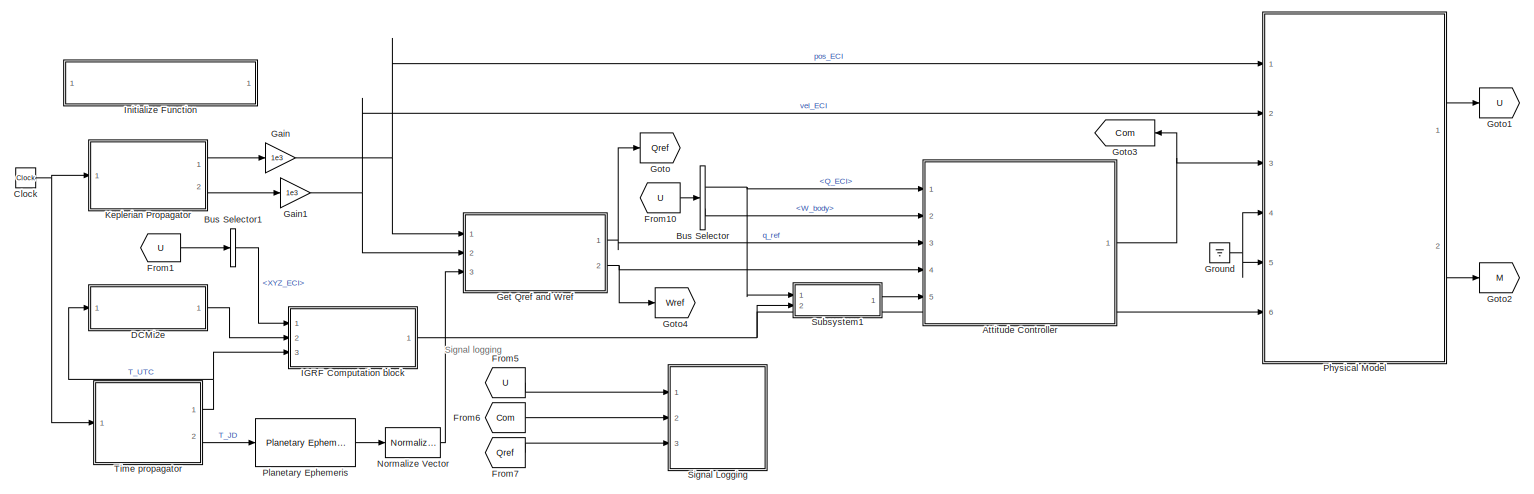
[diagram: root canvas - part 1/2, full width, top band]
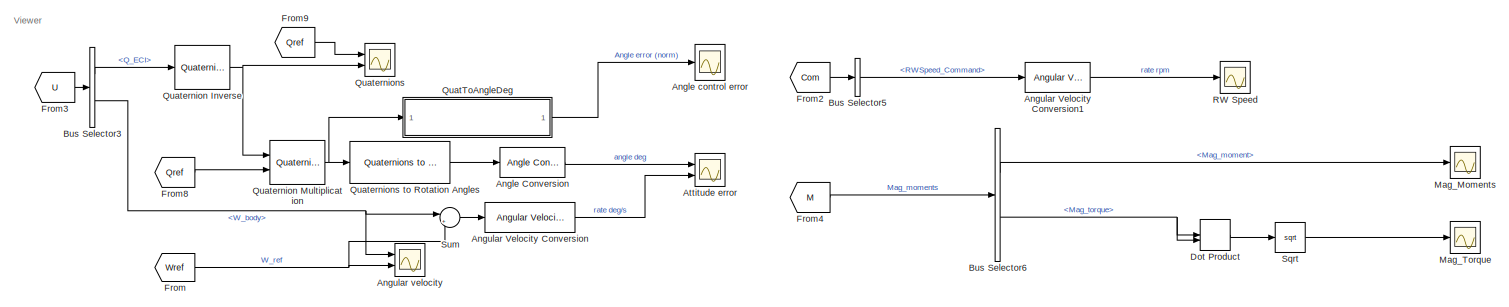
[diagram: root canvas - part 2/2, full width, bottom band]
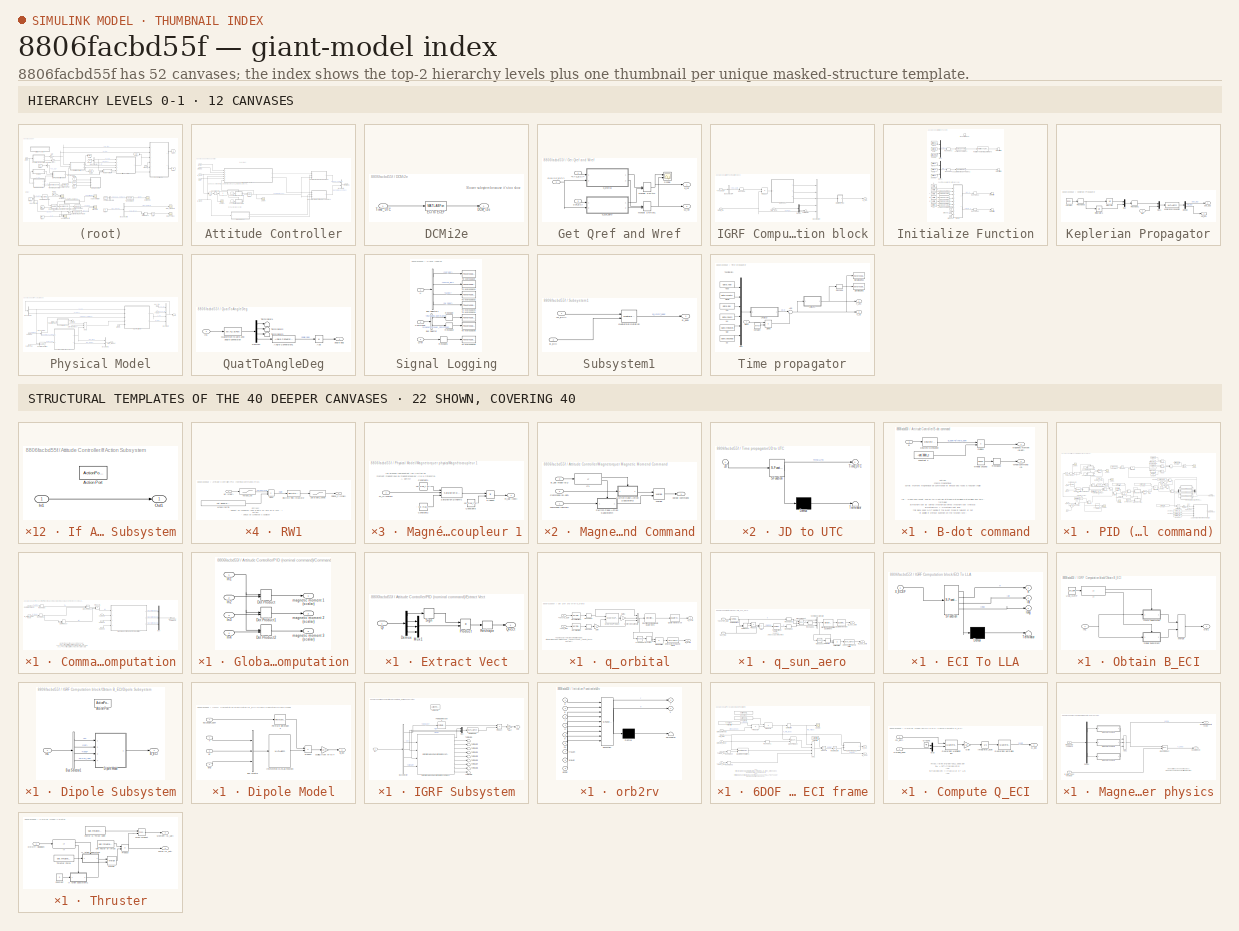
[diagram: thumbnail index - top-2 hierarchy levels (12 canvases) + 22 structural-template representatives of the remaining 40 canvases]
MODEL slx_8806facbd55f
KIND model
CONFIG AbsTol = auto
CONFIG EnableMultiTasking = off
CONFIG FixedStep = TimeStep
CONFIG MaxStep = auto
CONFIG MinStep = auto
CONFIG RelTol = 1e-3
CONFIG SampleTimeConstraint = Unconstrained
CONFIG SolverName = FixedStepAuto
CONFIG StartTime = 0.0
CONFIG StopTime = t_sim
BLOCK [Reference] Angle Conversion  REF=aerolibconvert2/Angle Conversion
  Ports = [1, 1]
  SourceBlock = aerolibconvert2/Angle Conversion
  SourceProductBaseCode = AE
  SourceType = Angle Conversion
BLOCK [Scope] Angle control error
  Floating = off
  NumInputPorts = 1
  Ports = [1]
  ScopeSpecificationString = Simulink.scopes.TimeScopeBlockCfg('CurrentConfiguration', extmgr.ConfigurationSet(extmgr.Configuration('Core','General UI',true,'FigureColor',[0 0 0]),extmgr.Configuration('Core','Source UI',true),extmgr.Configuration('Sources','WiredSimulink',true,'DataLoggingVariableName','ScopeData4'),extmgr.Configuration('Visuals','Time Domain',true,'SerializedDisplays',{struct('MinYLimReal','-22.45059','MaxYL...<+2522ch>
BLOCK [Reference] Angular Velocity Conversion  REF=aerolibconvert2/Angular Velocity
Conversion
  Ports = [1, 1]
  SourceBlock = aerolibconvert2/Angular Velocity\nConversion
  SourceProductBaseCode = AE
  SourceType = Angular Velocity Conversion
BLOCK [Reference] Angular Velocity Conversion1  REF=aerolibconvert2/Angular Velocity
Conversion
  Ports = [1, 1]
  SourceBlock = aerolibconvert2/Angular Velocity\nConversion
  SourceProductBaseCode = AE
  SourceType = Angular Velocity Conversion
BLOCK [Scope] Angular velocity
  Floating = off
  NumInputPorts = 2
  Ports = [2]
  ScopeSpecificationString = Simulink.scopes.TimeScopeBlockCfg('CurrentConfiguration', extmgr.ConfigurationSet(extmgr.Configuration('Core','General UI',true),extmgr.Configuration('Core','Source UI',true),extmgr.Configuration('Sources','WiredSimulink',true,'DataLoggingVariableName','ScopeData1'),extmgr.Configuration('Visuals','Time Domain',true,'SerializedDisplays',{struct('MinYLimReal','-0.00168','MaxYLimReal','0.0015','YLabe...<+2288ch>
BLOCK [SubSystem] Attitude Controller
  Ports = [5, 1]
  RequestExecContextInheritance = off
  TreatAsAtomicUnit = on
BLOCK [Abs] Attitude Controller/Abs
  SaturateOnIntegerOverflow = off
BLOCK [SubSystem] Attitude Controller/B-dot command
  Ports = [1, 2]
  RequestExecContextInheritance = off
  TreatAsAtomicUnit = on
BLOCK [Inport] Attitude Controller/B-dot command/B
BLOCK [Reference] Attitude Controller/B-dot command/Discrete Derivative  REF=simulink/Discrete/Discrete Derivative
  Ports = [1, 1]
  SourceBlock = simulink/Discrete/Discrete Derivative
  SourceProductBaseCode = SL
  SourceType = Discrete Derivative
BLOCK [Product] Attitude Controller/B-dot command/Divide1
  Inputs = **
  Ports = [2, 1]
BLOCK [Outport] Attitude Controller/B-dot command/Magnetic moment (B-dot)
  VectorParamsAs1DForOutWhenUnconnected = off
BLOCK [Reshape] Attitude Controller/B-dot command/Reshape2
  OutputDimensionality = Column vector (2-D)
  Ports = [1, 1]
BLOCK [Outport] Attitude Controller/B-dot command/Wheel command (0)
  Port = 2
  VectorParamsAs1DForOutWhenUnconnected = off
BLOCK [Constant] Attitude Controller/B-dot command/constant c
  Value = -sat.bdot_c
BLOCK [Constant] Attitude Controller/B-dot command/wheels unused
  Value = [0, 0, 0, 0]
BLOCK [Inport] Attitude Controller/B_Body
  Port = 5
BLOCK [BusCreator] Attitude Controller/Bus Creator
  DisplayOption = bar
  InheritFromInputs = on
  Inputs = 2
  Ports = [2, 1]
BLOCK [Outport] Attitude Controller/Command
  VectorParamsAs1DForOutWhenUnconnected = off
BLOCK [Constant] Attitude Controller/Constant
BLOCK [Constant] Attitude Controller/Constant1
  Value = 0
BLOCK [If] Attitude Controller/If
  IfExpression = u1 > 0.068
  Ports = [1, 2]
BLOCK [SubSystem] Attitude Controller/If Action Subsystem
  Ports = [1, 1, 0, 0, 0, 0, 0, 1]
  RequestExecContextInheritance = off
  TreatAsAtomicUnit = on
BLOCK [ActionPort] Attitude Controller/If Action Subsystem/Action Port
  ActionPortLabel = if(u1 > 0.068)
BLOCK [Inport] Attitude Controller/If Action Subsystem/In1
BLOCK [Outport] Attitude Controller/If Action Subsystem/Out1
  VectorParamsAs1DForOutWhenUnconnected = off
BLOCK [SubSystem] Attitude Controller/If Action Subsystem1
  Ports = [1, 1, 0, 0, 0, 0, 0, 1]
  RequestExecContextInheritance = off
  TreatAsAtomicUnit = on
BLOCK [ActionPort] Attitude Controller/If Action Subsystem1/Action Port
  ActionPortLabel = else
BLOCK [Inport] Attitude Controller/If Action Subsystem1/In1
BLOCK [Outport] Attitude Controller/If Action Subsystem1/Out1
  VectorParamsAs1DForOutWhenUnconnected = off
BLOCK [SubSystem] Attitude Controller/Magnetorquer Magnetic Momend Command
  Ports = [3, 1]
  RequestExecContextInheritance = off
BLOCK [Inport] Attitude Controller/Magnetorquer Magnetic Momend Command/ command (normal)
BLOCK [Inport] Attitude Controller/Magnetorquer Magnetic Momend Command/B_dot mode (0//1)
  Port = 3
BLOCK [Inport] Attitude Controller/Magnetorquer Magnetic Momend Command/Command (B-dot)
  Port = 2
BLOCK [If] Attitude Controller/Magnetorquer Magnetic Momend Command/If1
  Ports = [1, 2]
BLOCK [Merge] Attitude Controller/Magnetorquer Magnetic Momend Command/Merge
  Ports = [2, 1]
BLOCK [SubSystem] Attitude Controller/Magnetorquer Magnetic Momend Command/Switch Case Action Subsystem3
  Ports = [1, 1, 0, 0, 0, 0, 0, 1]
  RequestExecContextInheritance = off
  TreatAsAtomicUnit = on
BLOCK [ActionPort] Attitude Controller/Magnetorquer Magnetic Momend Command/Switch Case Action Subsystem3/Action Port
  ActionPortLabel = if(u1 > 0)
BLOCK [Inport] Attitude Controller/Magnetorquer Magnetic Momend Command/Switch Case Action Subsystem3/In1
BLOCK [Outport] Attitude Controller/Magnetorquer Magnetic Momend Command/Switch Case Action Subsystem3/Out1
  VectorParamsAs1DForOutWhenUnconnected = off
BLOCK [SubSystem] Attitude Controller/Magnetorquer Magnetic Momend Command/Switch Case Action Subsystem4
  Ports = [1, 1, 0, 0, 0, 0, 0, 1]
  RequestExecContextInheritance = off
  TreatAsAtomicUnit = on
BLOCK [ActionPort] Attitude Controller/Magnetorquer Magnetic Momend Command/Switch Case Action Subsystem4/Action Port
  ActionPortLabel = else
BLOCK [Inport] Attitude Controller/Magnetorquer Magnetic Momend Command/Switch Case Action Subsystem4/In1
BLOCK [Outport] Attitude Controller/Magnetorquer Magnetic Momend Command/Switch Case Action Subsystem4/Out1
  VectorParamsAs1DForOutWhenUnconnected = off
BLOCK [Outport] Attitude Controller/Magnetorquer Magnetic Momend Command/output command
  VectorParamsAs1DForOutWhenUnconnected = off
BLOCK [MinMax] Attitude Controller/Max of Elements
  Function = max
  Ports = [1, 1]
BLOCK [Merge] Attitude Controller/Merge
  Ports = [2, 1]
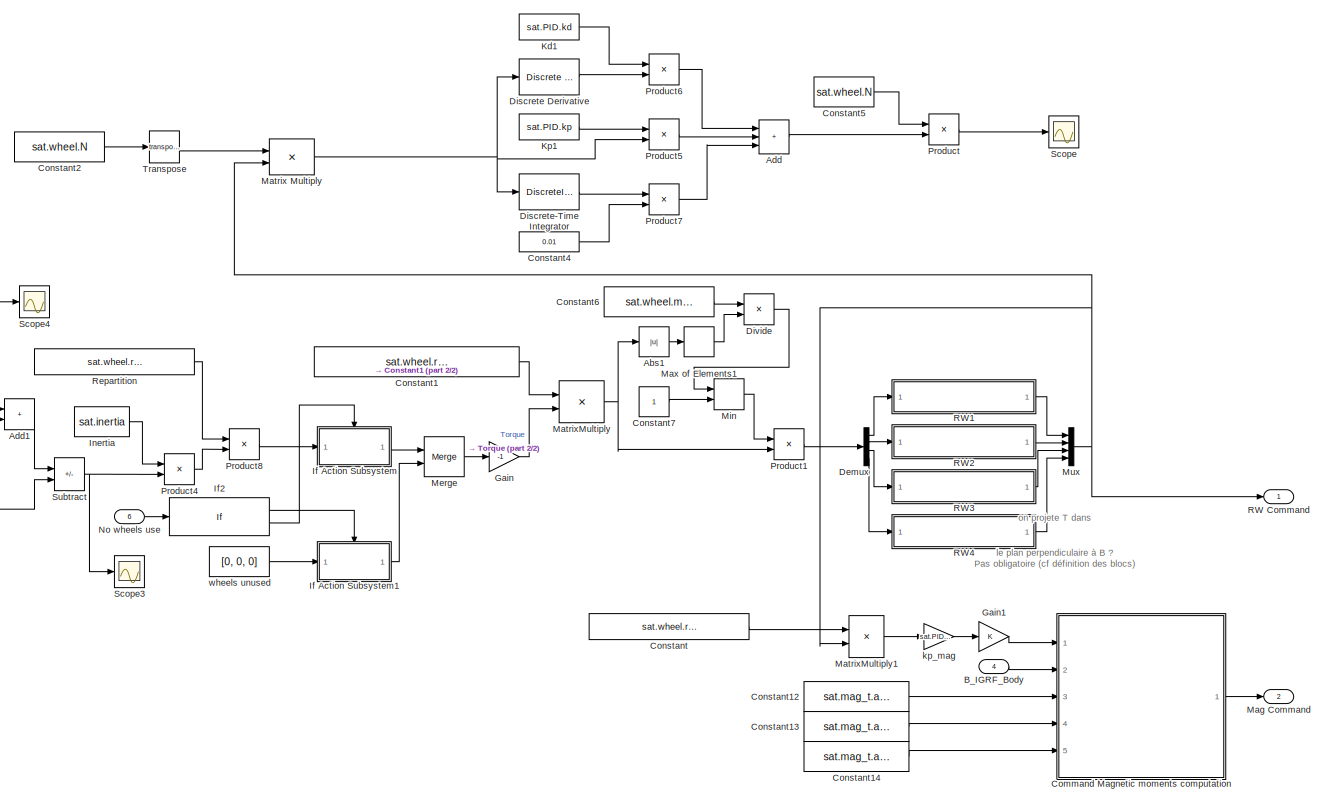
[diagram: Attitude Controller/PID (nominal command) - part 1/2, center side, full height]
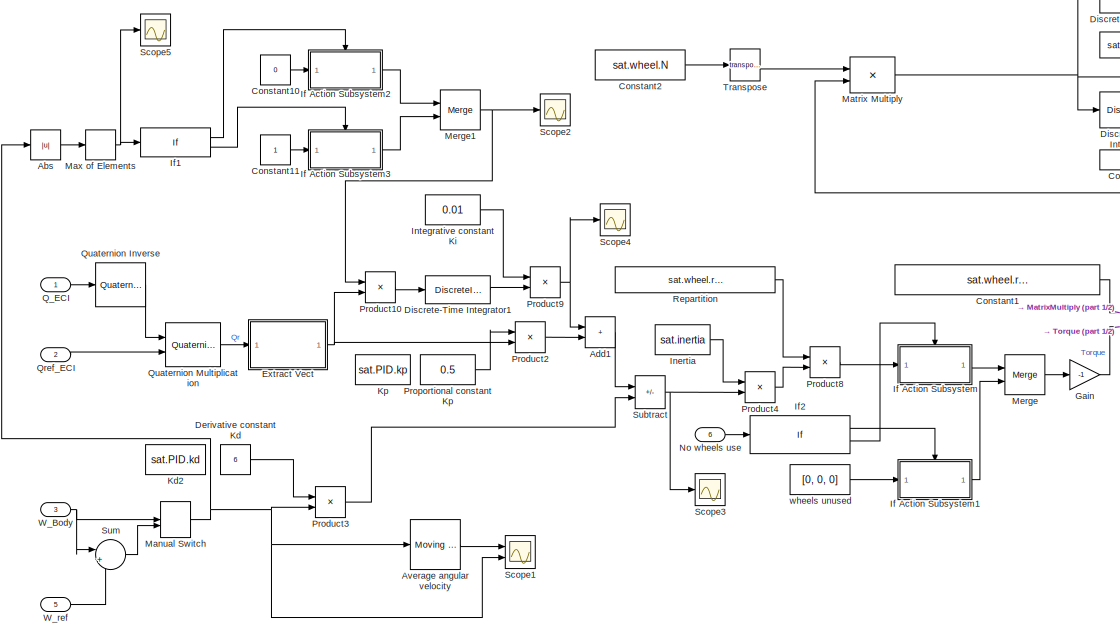
[diagram: Attitude Controller/PID (nominal command) - part 2/2, left side, full height]
BLOCK [SubSystem] Attitude Controller/PID (nominal command)
  Ports = [6, 2]
  RequestExecContextInheritance = off
  SystemSampleTime = 1
  TreatAsAtomicUnit = on
BLOCK [Abs] Attitude Controller/PID (nominal command)/Abs
  SaturateOnIntegerOverflow = off
BLOCK [Abs] Attitude Controller/PID (nominal command)/Abs1
  SaturateOnIntegerOverflow = off
BLOCK [Sum] Attitude Controller/PID (nominal command)/Add
  IconShape = rectangular
  Inputs = +++
  Ports = [3, 1]
BLOCK [Sum] Attitude Controller/PID (nominal command)/Add1
  IconShape = rectangular
  Ports = [2, 1]
BLOCK [Reference] Attitude Controller/PID (nominal command)/Average angular velocity  REF=dspstat3/Moving
Average
  Ports = [1, 1]
  SourceBlock = dspstat3/Moving\nAverage
  SourceProductBaseCode = DS
  SourceType = dsp.simulink.MovingAverage
BLOCK [Inport] Attitude Controller/PID (nominal command)/B_IGRF_Body
  Port = 4
BLOCK [SubSystem] Attitude Controller/PID (nominal command)/Command Magnetic moments computation
  Ports = [5, 1]
  RequestExecContextInheritance = off
BLOCK [Inport] Attitude Controller/PID (nominal command)/Command Magnetic moments computation/B_IGRF_body (vect)
  OutDataTypeStr = double
  Port = 2
BLOCK [Inport] Attitude Controller/PID (nominal command)/Command Magnetic moments computation/Command (vect)
  OutDataTypeStr = double
BLOCK [Reference] Attitude Controller/PID (nominal command)/Command Magnetic moments computation/Cross Product  REF=vrlib/Utilities/Cross Product
  Ports = [2, 1]
  SourceBlock = vrlib/Utilities/Cross Product
  SourceProductBaseCode = SL
  SourceType = Cross Product
BLOCK [DotProduct] Attitude Controller/PID (nominal command)/Command Magnetic moments computation/Dot Product
  OutDataTypeStr = Inherit: Inherit via internal rule
BLOCK [SubSystem] Attitude Controller/PID (nominal command)/Command Magnetic moments computation/Global magnetic moment computation
  Ports = [4, 3]
  RequestExecContextInheritance = off
BLOCK [DotProduct] Attitude Controller/PID (nominal command)/Command Magnetic moments computation/Global magnetic moment computation/Dot Product
  OutDataTypeStr = Inherit: Inherit via internal rule
BLOCK [DotProduct] Attitude Controller/PID (nominal command)/Command Magnetic moments computation/Global magnetic moment computation/Dot Product1
  OutDataTypeStr = Inherit: Inherit via internal rule
BLOCK [DotProduct] Attitude Controller/PID (nominal command)/Command Magnetic moments computation/Global magnetic moment computation/Dot Product2
  OutDataTypeStr = Inherit: Inherit via internal rule
BLOCK [Inport] Attitude Controller/PID (nominal command)/Command Magnetic moments computation/Global magnetic moment computation/In1
  OutDataTypeStr = double
BLOCK [Inport] Attitude Controller/PID (nominal command)/Command Magnetic moments computation/Global magnetic moment computation/In2
  Port = 2
BLOCK [Inport] Attitude Controller/PID (nominal command)/Command Magnetic moments computation/Global magnetic moment computation/In3
  Port = 3
BLOCK [Inport] Attitude Controller/PID (nominal command)/Command Magnetic moments computation/Global magnetic moment computation/In4
  Port = 4
BLOCK [Outport] Attitude Controller/PID (nominal command)/Command Magnetic moments computation/Global magnetic moment computation/magnetic moment 1 (scalar)
BLOCK [Outport] Attitude Controller/PID (nominal command)/Command Magnetic moments computation/Global magnetic moment computation/magnetic moment 2 (scalar)
  Port = 2
BLOCK [Outport] Attitude Controller/PID (nominal command)/Command Magnetic moments computation/Global magnetic moment computation/magnetic moment 3 (scalar)
  Port = 3
BLOCK [Outport] Attitude Controller/PID (nominal command)/Command Magnetic moments computation/Mag vector command
  VectorParamsAs1DForOutWhenUnconnected = off
BLOCK [Mux] Attitude Controller/PID (nominal command)/Command Magnetic moments computation/Mux
  DisplayOption = bar
  Inputs = 3
  Ports = [3, 1]
BLOCK [Product] Attitude Controller/PID (nominal command)/Command Magnetic moments computation/Product1
  Inputs = */
  Ports = [2, 1]
BLOCK [Reshape] Attitude Controller/PID (nominal command)/Command Magnetic moments computation/Reshape
  OutputDimensionality = Column vector (2-D)
  Ports = [1, 1]
BLOCK [Reshape] Attitude Controller/PID (nominal command)/Command Magnetic moments computation/Reshape1
  OutputDimensionality = Column vector (2-D)
  Ports = [1, 1]
BLOCK [Inport] Attitude Controller/PID (nominal command)/Command Magnetic moments computation/h1 (vect)
  Port = 3
BLOCK [Inport] Attitude Controller/PID (nominal command)/Command Magnetic moments computation/h2 (vect)
  Port = 4
BLOCK [Inport] Attitude Controller/PID (nominal command)/Command Magnetic moments computation/h3 (vect)
  Port = 5
BLOCK [Constant] Attitude Controller/PID (nominal command)/Constant
  Value = sat.wheel.repartition_matrix_4RW
BLOCK [Constant] Attitude Controller/PID (nominal command)/Constant1
  Value = sat.wheel.repartition_metrix_4RW_inverse
BLOCK [Constant] Attitude Controller/PID (nominal command)/Constant10
  Value = 0
BLOCK [Constant] Attitude Controller/PID (nominal command)/Constant11
BLOCK [Constant] Attitude Controller/PID (nominal command)/Constant12
  Value = sat.mag_t.axe1
BLOCK [Constant] Attitude Controller/PID (nominal command)/Constant13
  Value = sat.mag_t.axe2
BLOCK [Constant] Attitude Controller/PID (nominal command)/Constant14
  Value = sat.mag_t.axe3
BLOCK [Constant] Attitude Controller/PID (nominal command)/Constant2
  Value = sat.wheel.N
BLOCK [Constant] Attitude Controller/PID (nominal command)/Constant4
  Value = 0.01
BLOCK [Constant] Attitude Controller/PID (nominal command)/Constant5
  Value = sat.wheel.N
BLOCK [Constant] Attitude Controller/PID (nominal command)/Constant6
  Value = sat.wheel.max_torque
BLOCK [Constant] Attitude Controller/PID (nominal command)/Constant7
BLOCK [Demux] Attitude Controller/PID (nominal command)/Demux
  Ports = [1, 4]
BLOCK [Constant] Attitude Controller/PID (nominal command)/Derivative constant Kd
  Value = 6
BLOCK [Reference] Attitude Controller/PID (nominal command)/Discrete Derivative  REF=simulink/Discrete/Discrete Derivative
  Ports = [1, 1]
  SourceBlock = simulink/Discrete/Discrete Derivative
  SourceProductBaseCode = SL
  SourceType = Discrete Derivative
BLOCK [DiscreteIntegrator] Attitude Controller/PID (nominal command)/Discrete-Time Integrator
  ICPrevOutput = DiscIntNeverNeededParam
  ICPrevScaledInput = DiscIntNeverNeededParam
  InitialConditionSetting = Auto
  Ports = [1, 1]
  SampleTime = -1
BLOCK [DiscreteIntegrator] Attitude Controller/PID (nominal command)/Discrete-Time Integrator1
  ICPrevOutput = DiscIntNeverNeededParam
  ICPrevScaledInput = DiscIntNeverNeededParam
  InitialConditionSetting = Auto
  IntegratorMethod = Integration: Trapezoidal
  Ports = [1, 1]
  SampleTime = -1
BLOCK [Product] Attitude Controller/PID (nominal command)/Divide
  Inputs = */
  Ports = [2, 1]
BLOCK [SubSystem] Attitude Controller/PID (nominal command)/Extract Vect
  Ports = [1, 1]
  RequestExecContextInheritance = off
BLOCK [Demux] Attitude Controller/PID (nominal command)/Extract Vect/Demux
  Ports = [1, 4]
BLOCK [Mux] Attitude Controller/PID (nominal command)/Extract Vect/Mux1
  DisplayOption = bar
  Inputs = 3
  Ports = [3, 1]
BLOCK [Product] Attitude Controller/PID (nominal command)/Extract Vect/Product
  Ports = [2, 1]
BLOCK [Inport] Attitude Controller/PID (nominal command)/Extract Vect/Qr
BLOCK [Outport] Attitude Controller/PID (nominal command)/Extract Vect/Qvect
  VectorParamsAs1DForOutWhenUnconnected = off
BLOCK [Reshape] Attitude Controller/PID (nominal command)/Extract Vect/Reshape
  OutputDimensionality = Column vector (2-D)
  Ports = [1, 1]
BLOCK [Signum] Attitude Controller/PID (nominal command)/Extract Vect/Sign
BLOCK [Gain] Attitude Controller/PID (nominal command)/Gain
  Gain = -1
BLOCK [Gain] Attitude Controller/PID (nominal command)/Gain1
BLOCK [SubSystem] Attitude Controller/PID (nominal command)/If Action Subsystem
  Ports = [1, 1, 0, 0, 0, 0, 0, 1]
  RequestExecContextInheritance = off
  TreatAsAtomicUnit = on
BLOCK [ActionPort] Attitude Controller/PID (nominal command)/If Action Subsystem/Action Port
  ActionPortLabel = else
BLOCK [Inport] Attitude Controller/PID (nominal command)/If Action Subsystem/In1
BLOCK [Outport] Attitude Controller/PID (nominal command)/If Action Subsystem/Out1
  VectorParamsAs1DForOutWhenUnconnected = off
BLOCK [SubSystem] Attitude Controller/PID (nominal command)/If Action Subsystem1
  Ports = [1, 1, 0, 0, 0, 0, 0, 1]
  RequestExecContextInheritance = off
  TreatAsAtomicUnit = on
BLOCK [ActionPort] Attitude Controller/PID (nominal command)/If Action Subsystem1/Action Port
  ActionPortLabel = if(u1 > 0)
BLOCK [Inport] Attitude Controller/PID (nominal command)/If Action Subsystem1/In1
BLOCK [Outport] Attitude Controller/PID (nominal command)/If Action Subsystem1/Out1
  VectorParamsAs1DForOutWhenUnconnected = off
BLOCK [SubSystem] Attitude Controller/PID (nominal command)/If Action Subsystem2
  Ports = [1, 1, 0, 0, 0, 0, 0, 1]
  RequestExecContextInheritance = off
  TreatAsAtomicUnit = on
BLOCK [ActionPort] Attitude Controller/PID (nominal command)/If Action Subsystem2/Action Port
  ActionPortLabel = if(u1 > 0.0068)
BLOCK [Inport] Attitude Controller/PID (nominal command)/If Action Subsystem2/In1
BLOCK [Outport] Attitude Controller/PID (nominal command)/If Action Subsystem2/Out1
  VectorParamsAs1DForOutWhenUnconnected = off
BLOCK [SubSystem] Attitude Controller/PID (nominal command)/If Action Subsystem3
  Ports = [1, 1, 0, 0, 0, 0, 0, 1]
  RequestExecContextInheritance = off
  TreatAsAtomicUnit = on
BLOCK [ActionPort] Attitude Controller/PID (nominal command)/If Action Subsystem3/Action Port
  ActionPortLabel = else
BLOCK [Inport] Attitude Controller/PID (nominal command)/If Action Subsystem3/In1
BLOCK [Outport] Attitude Controller/PID (nominal command)/If Action Subsystem3/Out1
  VectorParamsAs1DForOutWhenUnconnected = off
BLOCK [If] Attitude Controller/PID (nominal command)/If1
  IfExpression = u1 > 0.0068
  Ports = [1, 2]
BLOCK [If] Attitude Controller/PID (nominal command)/If2
  Ports = [1, 2]
BLOCK [Constant] Attitude Controller/PID (nominal command)/Inertia
  Value = sat.inertia
BLOCK [Constant] Attitude Controller/PID (nominal command)/Integrative constant Ki
  Value = 0.01
BLOCK [Constant] Attitude Controller/PID (nominal command)/Kd1
  Value = sat.PID.kd
BLOCK [Constant] Attitude Controller/PID (nominal command)/Kd2
  Commented = on
  Value = sat.PID.kd
BLOCK [Constant] Attitude Controller/PID (nominal command)/Kp
  Commented = on
  Value = sat.PID.kp
BLOCK [Constant] Attitude Controller/PID (nominal command)/Kp1
  Value = sat.PID.kp
BLOCK [Outport] Attitude Controller/PID (nominal command)/Mag Command
  Port = 2
  VectorParamsAs1DForOutWhenUnconnected = off
BLOCK [ManualSwitch] Attitude Controller/PID (nominal command)/Manual Switch
  CurrentSetting = 0
BLOCK [Product] Attitude Controller/PID (nominal command)/Matrix Multiply
  Multiplication = Matrix(*)
  Ports = [2, 1]
BLOCK [Product] Attitude Controller/PID (nominal command)/MatrixMultiply
  Multiplication = Matrix(*)
  Ports = [2, 1]
BLOCK [Product] Attitude Controller/PID (nominal command)/MatrixMultiply1
  Multiplication = Matrix(*)
  Ports = [2, 1]
BLOCK [MinMax] Attitude Controller/PID (nominal command)/Max of Elements
  Function = max
  Ports = [1, 1]
BLOCK [MinMax] Attitude Controller/PID (nominal command)/Max of Elements1
  Function = max
  Ports = [1, 1]
BLOCK [Merge] Attitude Controller/PID (nominal command)/Merge
  Ports = [2, 1]
BLOCK [Merge] Attitude Controller/PID (nominal command)/Merge1
  Ports = [2, 1]
BLOCK [MinMax] Attitude Controller/PID (nominal command)/Min
  Inputs = 2
  Ports = [2, 1]
BLOCK [Mux] Attitude Controller/PID (nominal command)/Mux
  DisplayOption = bar
  Ports = [4, 1]
BLOCK [Inport] Attitude Controller/PID (nominal command)/No wheels use
  Port = 6
BLOCK [Product] Attitude Controller/PID (nominal command)/Product
  Ports = [2, 1]
BLOCK [Product] Attitude Controller/PID (nominal command)/Product1
  Ports = [2, 1]
BLOCK [Product] Attitude Controller/PID (nominal command)/Product10
  Ports = [2, 1]
BLOCK [Product] Attitude Controller/PID (nominal command)/Product2
  Ports = [2, 1]
BLOCK [Product] Attitude Controller/PID (nominal command)/Product3
  Ports = [2, 1]
BLOCK [Product] Attitude Controller/PID (nominal command)/Product4
  Multiplication = Matrix(*)
  Ports = [2, 1]
BLOCK [Product] Attitude Controller/PID (nominal command)/Product5
  Ports = [2, 1]
BLOCK [Product] Attitude Controller/PID (nominal command)/Product6
  Ports = [2, 1]
BLOCK [Product] Attitude Controller/PID (nominal command)/Product7
  Ports = [2, 1]
BLOCK [Product] Attitude Controller/PID (nominal command)/Product8
  Multiplication = Matrix(*)
  Ports = [2, 1]
BLOCK [Product] Attitude Controller/PID (nominal command)/Product9
  Ports = [2, 1]
BLOCK [Constant] Attitude Controller/PID (nominal command)/Proportional constant Kp
  Value = 0.5
BLOCK [Inport] Attitude Controller/PID (nominal command)/Q_ECI
BLOCK [Inport] Attitude Controller/PID (nominal command)/Qref_ECI
  Port = 2
BLOCK [Reference] Attitude Controller/PID (nominal command)/Quaternion Inverse  REF=aerolibutil/Quaternion
Inverse
  Ports = [1, 1]
  SourceBlock = aerolibutil/Quaternion\nInverse
  SourceProductBaseCode = AE
  SourceType = Quaternion Inverse
BLOCK [Reference] Attitude Controller/PID (nominal command)/Quaternion Multiplication  REF=aerolibutil/Quaternion
Multiplication
  Ports = [2, 1]
  SourceBlock = aerolibutil/Quaternion\nMultiplication
  SourceProductBaseCode = AE
  SourceType = Quaternion Multiplication
BLOCK [Outport] Attitude Controller/PID (nominal command)/RW Command
  VectorParamsAs1DForOutWhenUnconnected = off
BLOCK [SubSystem] Attitude Controller/PID (nominal command)/RW1
  Ports = [1, 1]
  RequestExecContextInheritance = off
BLOCK [DiscreteIntegrator] Attitude Controller/PID (nominal command)/RW1/Discrete-Time Integrator
  ICPrevOutput = DiscIntNeverNeededParam
  ICPrevScaledInput = DiscIntNeverNeededParam
  InitialConditionSetting = Auto
  IntegratorMethod = Integration: Trapezoidal
  Ports = [1, 1]
  SampleTime = -1
BLOCK [Product] Attitude Controller/PID (nominal command)/RW1/Divide
  Inputs = */
  Ports = [2, 1]
BLOCK [Inport] Attitude Controller/PID (nominal command)/RW1/Mc (scalar)
BLOCK [Outport] Attitude Controller/PID (nominal command)/RW1/Omega_C (scalar)
BLOCK [Saturate] Attitude Controller/PID (nominal command)/RW1/Saturation_speed
  LowerLimit = - sat.wheel.max_speed
  UpperLimit = sat.wheel.max_speed
BLOCK [Saturate] Attitude Controller/PID (nominal command)/RW1/Torque_sat
  LowerLimit = - sat.wheel.max_torque
  UpperLimit = sat.wheel.max_torque
BLOCK [Constant] Attitude Controller/PID (nominal command)/RW1/Wheel Inertia
  Value = sat.wheel.max_sigma/sat.wheel.max_speed
BLOCK [SubSystem] Attitude Controller/PID (nominal command)/RW2
  Ports = [1, 1]
  RequestExecContextInheritance = off
BLOCK [DiscreteIntegrator] Attitude Controller/PID (nominal command)/RW2/Discrete-Time Integrator
  ICPrevOutput = DiscIntNeverNeededParam
  ICPrevScaledInput = DiscIntNeverNeededParam
  InitialConditionSetting = Auto
  IntegratorMethod = Integration: Trapezoidal
  Ports = [1, 1]
  SampleTime = -1
BLOCK [Product] Attitude Controller/PID (nominal command)/RW2/Divide
  Inputs = */
  Ports = [2, 1]
BLOCK [Inport] Attitude Controller/PID (nominal command)/RW2/Mc (scalar)
BLOCK [Outport] Attitude Controller/PID (nominal command)/RW2/Omega_C (scalar)
BLOCK [Saturate] Attitude Controller/PID (nominal command)/RW2/Saturation_speed
  LowerLimit = - sat.wheel.max_speed
  UpperLimit = sat.wheel.max_speed
BLOCK [Saturate] Attitude Controller/PID (nominal command)/RW2/Torque_sat
  LowerLimit = - sat.wheel.max_torque
  UpperLimit = sat.wheel.max_torque
BLOCK [Constant] Attitude Controller/PID (nominal command)/RW2/Wheel Inertia
  Value = sat.wheel.max_sigma/sat.wheel.max_speed
BLOCK [SubSystem] Attitude Controller/PID (nominal command)/RW3
  Ports = [1, 1]
  RequestExecContextInheritance = off
BLOCK [DiscreteIntegrator] Attitude Controller/PID (nominal command)/RW3/Discrete-Time Integrator
  ICPrevOutput = DiscIntNeverNeededParam
  ICPrevScaledInput = DiscIntNeverNeededParam
  InitialConditionSetting = Auto
  IntegratorMethod = Integration: Trapezoidal
  Ports = [1, 1]
  SampleTime = -1
BLOCK [Product] Attitude Controller/PID (nominal command)/RW3/Divide
  Inputs = */
  Ports = [2, 1]
BLOCK [Inport] Attitude Controller/PID (nominal command)/RW3/Mc (scalar)
BLOCK [Outport] Attitude Controller/PID (nominal command)/RW3/Omega_C (scalar)
BLOCK [Saturate] Attitude Controller/PID (nominal command)/RW3/Saturation_speed
  LowerLimit = - sat.wheel.max_speed
  UpperLimit = sat.wheel.max_speed
BLOCK [Saturate] Attitude Controller/PID (nominal command)/RW3/Torque_sat
  LowerLimit = - sat.wheel.max_torque
  UpperLimit = sat.wheel.max_torque
BLOCK [Constant] Attitude Controller/PID (nominal command)/RW3/Wheel Inertia
  Value = sat.wheel.max_sigma/sat.wheel.max_speed
BLOCK [SubSystem] Attitude Controller/PID (nominal command)/RW4 
  Ports = [1, 1]
  RequestExecContextInheritance = off
BLOCK [DiscreteIntegrator] Attitude Controller/PID (nominal command)/RW4 /Discrete-Time Integrator
  ICPrevOutput = DiscIntNeverNeededParam
  ICPrevScaledInput = DiscIntNeverNeededParam
  InitialConditionSetting = Auto
  IntegratorMethod = Integration: Trapezoidal
  Ports = [1, 1]
  SampleTime = -1
BLOCK [Product] Attitude Controller/PID (nominal command)/RW4 /Divide
  Inputs = */
  Ports = [2, 1]
BLOCK [Inport] Attitude Controller/PID (nominal command)/RW4 /Mc (scalar)
BLOCK [Outport] Attitude Controller/PID (nominal command)/RW4 /Omega_C (scalar)
BLOCK [Saturate] Attitude Controller/PID (nominal command)/RW4 /Saturation_speed
  LowerLimit = - sat.wheel.max_speed
  UpperLimit = sat.wheel.max_speed
BLOCK [Saturate] Attitude Controller/PID (nominal command)/RW4 /Torque_sat
  LowerLimit = - sat.wheel.max_torque
  UpperLimit = sat.wheel.max_torque
BLOCK [Constant] Attitude Controller/PID (nominal command)/RW4 /Wheel Inertia
  Value = sat.wheel.max_sigma/sat.wheel.max_speed
BLOCK [Constant] Attitude Controller/PID (nominal command)/Repartition
  Value = sat.wheel.repartition_matrix_3RW
BLOCK [Scope] Attitude Controller/PID (nominal command)/Scope
  Floating = off
  NumInputPorts = 1
  Ports = [1]
  ScopeSpecificationString = Simulink.scopes.TimeScopeBlockCfg('CurrentConfiguration', extmgr.ConfigurationSet(extmgr.Configuration('Core','General UI',true),extmgr.Configuration('Core','Source UI',true),extmgr.Configuration('Sources','WiredSimulink',true,'DataLoggingVariableName','ScopeData1'),extmgr.Configuration('Visuals','Time Domain',true,'SerializedDisplays',{struct('MinYLimReal','-1970.70614','MaxYLimReal','218.96735',...<+1424ch>
BLOCK [Scope] Attitude Controller/PID (nominal command)/Scope1
  Floating = off
  NumInputPorts = 2
  Ports = [2]
  ScopeSpecificationString = Simulink.scopes.TimeScopeBlockCfg('CurrentConfiguration', extmgr.ConfigurationSet(extmgr.Configuration('Core','General UI',true),extmgr.Configuration('Core','Source UI',true),extmgr.Configuration('Sources','WiredSimulink',true,'DataLoggingVariableName','ScopeData1'),extmgr.Configuration('Visuals','Time Domain',true,'SerializedDisplays',{struct('MinYLimReal','-0.01028','MaxYLimReal','0.00937','YLab...<+1850ch>
BLOCK [Scope] Attitude Controller/PID (nominal command)/Scope2
  Floating = off
  NumInputPorts = 1
  Ports = [1]
  ScopeSpecificationString = Simulink.scopes.TimeScopeBlockCfg('CurrentConfiguration', extmgr.ConfigurationSet(extmgr.Configuration('Core','General UI',true),extmgr.Configuration('Core','Source UI',true),extmgr.Configuration('Sources','WiredSimulink',true,'DataLoggingVariableName','ScopeData2'),extmgr.Configuration('Visuals','Time Domain',true,'SerializedDisplays',{struct('MinYLimReal','-0.125','MaxYLimReal','1.125','YLabelRe...<+1385ch>
BLOCK [Scope] Attitude Controller/PID (nominal command)/Scope3
  Floating = off
  NumInputPorts = 1
  Ports = [1]
  ScopeSpecificationString = Simulink.scopes.TimeScopeBlockCfg('CurrentConfiguration', extmgr.ConfigurationSet(extmgr.Configuration('Core','General UI',true),extmgr.Configuration('Core','Source UI',true),extmgr.Configuration('Sources','WiredSimulink',true,'DataLoggingVariableName','ScopeData3'),extmgr.Configuration('Visuals','Time Domain',true,'SerializedDisplays',{struct('MinYLimReal','-0.19236','MaxYLimReal','0.1914','YLabe...<+1486ch>
BLOCK [Scope] Attitude Controller/PID (nominal command)/Scope4
  Floating = off
  NumInputPorts = 1
  Ports = [1]
  ScopeSpecificationString = Simulink.scopes.TimeScopeBlockCfg('CurrentConfiguration', extmgr.ConfigurationSet(extmgr.Configuration('Core','General UI',true),extmgr.Configuration('Core','Source UI',true),extmgr.Configuration('Sources','WiredSimulink',true,'DataLoggingVariableName','ScopeData4'),extmgr.Configuration('Visuals','Time Domain',true,'SerializedDisplays',{struct('MinYLimReal','-0.01704','MaxYLimReal','0.00237','YLab...<+1468ch>
BLOCK [Scope] Attitude Controller/PID (nominal command)/Scope5
  Floating = off
  NumInputPorts = 1
  Ports = [1]
  ScopeSpecificationString = Simulink.scopes.TimeScopeBlockCfg('CurrentConfiguration', extmgr.ConfigurationSet(extmgr.Configuration('Core','General UI',true),extmgr.Configuration('Core','Source UI',true),extmgr.Configuration('Sources','WiredSimulink',true,'DataLoggingVariableName','ScopeData1'),extmgr.Configuration('Visuals','Time Domain',true,'SerializedDisplays',{struct('MinYLimReal','-0.011','MaxYLimReal','0.09901','YLabel...<+1370ch>
BLOCK [Sum] Attitude Controller/PID (nominal command)/Subtract
  IconShape = rectangular
  Inputs = +-
  Ports = [2, 1]
BLOCK [Sum] Attitude Controller/PID (nominal command)/Sum
  Inputs = |+-
  Ports = [2, 1]
BLOCK [Math] Attitude Controller/PID (nominal command)/Transpose
  Operator = transpose
  Ports = [1, 1]
BLOCK [Inport] Attitude Controller/PID (nominal command)/W_Body
  Port = 3
BLOCK [Inport] Attitude Controller/PID (nominal command)/W_ref
  Port = 5
BLOCK [Gain] Attitude Controller/PID (nominal command)/kp_mag
  Gain = sat.PID.kpmag
BLOCK [Constant] Attitude Controller/PID (nominal command)/wheels unused
  Value = [0, 0, 0]
BLOCK [Inport] Attitude Controller/Q_ECI
BLOCK [Inport] Attitude Controller/Qref_ECI
  Port = 3
BLOCK [SubSystem] Attitude Controller/Reaction Wheels Speed Command
  Ports = [3, 1]
  RequestExecContextInheritance = off
BLOCK [Inport] Attitude Controller/Reaction Wheels Speed Command/ command (normal)
BLOCK [Inport] Attitude Controller/Reaction Wheels Speed Command/B_dot mode (0//1)
  Port = 3
BLOCK [Inport] Attitude Controller/Reaction Wheels Speed Command/Command (B-dot)
  Port = 2
BLOCK [If] Attitude Controller/Reaction Wheels Speed Command/If1
  Ports = [1, 2]
BLOCK [Merge] Attitude Controller/Reaction Wheels Speed Command/Merge
  Ports = [2, 1]
BLOCK [SubSystem] Attitude Controller/Reaction Wheels Speed Command/Switch Case Action Subsystem3
  Ports = [1, 1, 0, 0, 0, 0, 0, 1]
  RequestExecContextInheritance = off
  TreatAsAtomicUnit = on
BLOCK [ActionPort] Attitude Controller/Reaction Wheels Speed Command/Switch Case Action Subsystem3/Action Port
  ActionPortLabel = if(u1 > 0)
BLOCK [Inport] Attitude Controller/Reaction Wheels Speed Command/Switch Case Action Subsystem3/In1
BLOCK [Outport] Attitude Controller/Reaction Wheels Speed Command/Switch Case Action Subsystem3/Out1
  VectorParamsAs1DForOutWhenUnconnected = off
BLOCK [SubSystem] Attitude Controller/Reaction Wheels Speed Command/Switch Case Action Subsystem4
  Ports = [1, 1, 0, 0, 0, 0, 0, 1]
  RequestExecContextInheritance = off
  TreatAsAtomicUnit = on
BLOCK [ActionPort] Attitude Controller/Reaction Wheels Speed Command/Switch Case Action Subsystem4/Action Port
  ActionPortLabel = else
BLOCK [Inport] Attitude Controller/Reaction Wheels Speed Command/Switch Case Action Subsystem4/In1
BLOCK [Outport] Attitude Controller/Reaction Wheels Speed Command/Switch Case Action Subsystem4/Out1
  VectorParamsAs1DForOutWhenUnconnected = off
BLOCK [Outport] Attitude Controller/Reaction Wheels Speed Command/output command
  VectorParamsAs1DForOutWhenUnconnected = off
BLOCK [Scope] Attitude Controller/Scope
  Floating = off
  NumInputPorts = 1
  Ports = [1]
  ScopeSpecificationString = Simulink.scopes.TimeScopeBlockCfg('CurrentConfiguration', extmgr.ConfigurationSet(extmgr.Configuration('Core','General UI',true),extmgr.Configuration('Core','Source UI',true),extmgr.Configuration('Sources','WiredSimulink',true,'DataLoggingVariableName','ScopeData1'),extmgr.Configuration('Visuals','Time Domain',true,'SerializedDisplays',{struct('MinYLimReal','-0.125','MaxYLimReal','1.125','YLabelRe...<+1387ch>
BLOCK [Scope] Attitude Controller/Scope1
  Floating = off
  NumInputPorts = 1
  Ports = [1]
  ScopeSpecificationString = Simulink.scopes.TimeScopeBlockCfg('CurrentConfiguration', extmgr.ConfigurationSet(extmgr.Configuration('Core','General UI',true),extmgr.Configuration('Core','Source UI',true),extmgr.Configuration('Sources','WiredSimulink',true,'DataLoggingVariableName','ScopeData2'),extmgr.Configuration('Visuals','Time Domain',true,'SerializedDisplays',{struct('MinYLimReal','-0.00507','MaxYLimReal','0.13631','YLab...<+1474ch>
BLOCK [Inport] Attitude Controller/W_body
  Port = 2
BLOCK [Inport] Attitude Controller/W_ref
  Port = 4
BLOCK [Scope] Attitude error
  Floating = off
  NumInputPorts = 2
  Ports = [2]
  ScopeSpecificationString = Simulink.scopes.TimeScopeBlockCfg('CurrentConfiguration', extmgr.ConfigurationSet(extmgr.Configuration('Core','General UI',true,'FigureColor',[0 0 0]),extmgr.Configuration('Core','Source UI',true),extmgr.Configuration('Sources','WiredSimulink',true,'DataLoggingVariableName','ScopeData5'),extmgr.Configuration('Visuals','Time Domain',true,'TimeAxisLabels','All','SerializedDisplays',{struct('MinYLimR...<+2616ch>
BLOCK [BusSelector] Bus Selector
  OutputSignals = Q_ECI,W_body
  Ports = [1, 2]
BLOCK [BusSelector] Bus Selector1
  OutputSignals = XYZ_ECI
  Ports = [1, 1]
BLOCK [BusSelector] Bus Selector3
  OutputSignals = Q_ECI,W_body
  Ports = [1, 2]
BLOCK [BusSelector] Bus Selector5
  OutputSignals = RWSpeed_Command
  Ports = [1, 1]
BLOCK [BusSelector] Bus Selector6
  OutputSignals = Mag_moment,Mag_torque
  Ports = [1, 2]
BLOCK [Clock] Clock
BLOCK [SubSystem] DCMi2e
  Ports = [1, 1]
  RequestExecContextInheritance = off
  SystemSampleTime = 1
  TreatAsAtomicUnit = on
BLOCK [Outport] DCMi2e/DCM_i2e
BLOCK [MATLABFcn] DCMi2e/ECI to ECEF
  MATLABFcn = eci2ecef
  Output1D = off
  OutputDimensions = [3;3]
  Ports = [1, 1]
BLOCK [Inport] DCMi2e/Time_UTC
BLOCK [DotProduct] Dot Product
  OutDataTypeStr = Inherit: Inherit via internal rule
BLOCK [From] From
  GotoTag = Wref
BLOCK [From] From1
  GotoTag = U
BLOCK [From] From10
  GotoTag = U
BLOCK [From] From2
  GotoTag = Com
BLOCK [From] From3
  GotoTag = U
BLOCK [From] From4
  GotoTag = M
BLOCK [From] From5
  GotoTag = U
BLOCK [From] From6
  GotoTag = Com
BLOCK [From] From7
  GotoTag = Qref
BLOCK [From] From8
  GotoTag = Qref
BLOCK [From] From9
  GotoTag = Qref
BLOCK [Gain] Gain
  Gain = 1e3
BLOCK [Gain] Gain1
  Gain = 1e3
BLOCK [SubSystem] Get Qref and Wref
  Ports = [3, 2]
  RequestExecContextInheritance = off
BLOCK [Inport] Get Qref and Wref/<VxVyVz_ECI>
  Port = 2
BLOCK [Inport] Get Qref and Wref/<XYZ_ECI>
BLOCK [ManualSwitch] Get Qref and Wref/Manual Switch
  CurrentSetting = 0
BLOCK [ManualSwitch] Get Qref and Wref/Manual Switch1
  CurrentSetting = 0
BLOCK [Scope] Get Qref and Wref/Scope
  Floating = off
  NumInputPorts = 2
  Ports = [2]
  ScopeSpecificationString = Simulink.scopes.TimeScopeBlockCfg('CurrentConfiguration', extmgr.ConfigurationSet(extmgr.Configuration('Core','General UI',true),extmgr.Configuration('Core','Source UI',true),extmgr.Configuration('Sources','WiredSimulink',true,'DataLoggingVariableName','ScopeData1'),extmgr.Configuration('Visuals','Time Domain',true,'SerializedDisplays',{struct('MinYLimReal','-1.04847','MaxYLimReal','1.0329','YLabe...<+2331ch>
BLOCK [Inport] Get Qref and Wref/Sun_ECI
  Port = 3
BLOCK [Outport] Get Qref and Wref/W_ref
  Port = 2
BLOCK [SubSystem] Get Qref and Wref/q_orbital
  Ports = [2, 2]
  RequestExecContextInheritance = off
BLOCK [Reference] Get Qref and Wref/q_orbital/3x3 Cross Product  REF=sharedutil/3x3 Cross Product
  Ports = [2, 1]
  SourceBlock = sharedutil/3x3 Cross Product
  SourceProductBaseCode = AE,PW,MT,UV,VE,VP
  SourceType = CrossProduct
BLOCK [Inport] Get Qref and Wref/q_orbital/<VxVyVz_ECI>
  Port = 2
BLOCK [Inport] Get Qref and Wref/q_orbital/<XYZ_ECI>
BLOCK [Derivative] Get Qref and Wref/q_orbital/Derivative
BLOCK [Reference] Get Qref and Wref/q_orbital/Direction Cosine Matrix to Quaternions  REF=sharedtransform/Direction Cosine Matrix 
to Quaternions
  Ports = [1, 1]
  SourceBlock = sharedtransform/Direction Cosine Matrix \nto Quaternions
  SourceProductBaseCode = AE,PW,MT,UV,VE,VP
  SourceType = DCM2Quaternion
BLOCK [Gain] Get Qref and Wref/q_orbital/Gain
BLOCK [Gain] Get Qref and Wref/q_orbital/Gain1
  Gain = -1
BLOCK [Product] Get Qref and Wref/q_orbital/Matrix Multiply
  Multiplication = Matrix(*)
  Ports = [2, 1]
BLOCK [Reference] Get Qref and Wref/q_orbital/Normalization  REF=dspmathops/Normalization
  Ports = [1, 1]
  SourceBlock = dspmathops/Normalization
  SourceProductBaseCode = DS
  SourceType = Normalization
BLOCK [Reference] Get Qref and Wref/q_orbital/Normalization1  REF=dspmathops/Normalization
  Ports = [1, 1]
  SourceBlock = dspmathops/Normalization
  SourceProductBaseCode = DS
  SourceType = Normalization
BLOCK [Outport] Get Qref and Wref/q_orbital/Q_orbit
  VectorParamsAs1DForOutWhenUnconnected = off
BLOCK [Reference] Get Qref and Wref/q_orbital/Quaternion Inverse  REF=aerolibutil/Quaternion
Inverse
  Ports = [1, 1]
  SourceBlock = aerolibutil/Quaternion\nInverse
  SourceProductBaseCode = AE
  SourceType = Quaternion Inverse
BLOCK [Reshape] Get Qref and Wref/q_orbital/Reshape
  OutputDimensionality = Column vector (2-D)
  Ports = [1, 1]
BLOCK [Reshape] Get Qref and Wref/q_orbital/Reshape1
  OutputDimensionality = Column vector (2-D)
  Ports = [1, 1]
BLOCK [Math] Get Qref and Wref/q_orbital/Transpose
  Operator = transpose
  Ports = [1, 1]
BLOCK [Concatenate] Get Qref and Wref/q_orbital/Vector Concatenate
  ConcatenateDimension = 2
  Mode = Multidimensional array
  NumInputs = 3
  Ports = [3, 1]
BLOCK [Outport] Get Qref and Wref/q_orbital/W_orbit
  Port = 2
BLOCK [MATLABFcn] Get Qref and Wref/q_orbital/gets vector from Skew Matrix
  MATLABFcn = vec_from_skew
  Ports = [1, 1]
BLOCK [Outport] Get Qref and Wref/q_ref
BLOCK [SubSystem] Get Qref and Wref/q_sun_aero
  Ports = [2, 2]
  RequestExecContextInheritance = off
BLOCK [Inport] Get Qref and Wref/q_sun_aero/<VxVyVz_ECI>
  Port = 2
BLOCK [Reference] Get Qref and Wref/q_sun_aero/Cross Product  REF=vrlib/Utilities/Cross Product
  Ports = [2, 1]
  SourceBlock = vrlib/Utilities/Cross Product
  SourceProductBaseCode = SL
  SourceType = Cross Product
BLOCK [Derivative] Get Qref and Wref/q_sun_aero/Derivative
BLOCK [Reference] Get Qref and Wref/q_sun_aero/Direction Cosine Matrix to Quaternions  REF=sharedtransform/Direction Cosine Matrix 
to Quaternions
  Ports = [1, 1]
  SourceBlock = sharedtransform/Direction Cosine Matrix \nto Quaternions
  SourceProductBaseCode = AE,PW,MT,UV,VE,VP
  SourceType = DCM2Quaternion
BLOCK [DotProduct] Get Qref and Wref/q_sun_aero/Dot Product
  OutDataTypeStr = Inherit: Inherit via internal rule
BLOCK [Product] Get Qref and Wref/q_sun_aero/Matrix Multiply
  Multiplication = Matrix(*)
  Ports = [2, 1]
BLOCK [Reference] Get Qref and Wref/q_sun_aero/Normalization1  REF=dspmathops/Normalization
  Ports = [1, 1]
  SourceBlock = dspmathops/Normalization
  SourceProductBaseCode = DS
  SourceType = Normalization
BLOCK [Reference] Get Qref and Wref/q_sun_aero/Normalization2  REF=dspmathops/Normalization
  Ports = [1, 1]
  SourceBlock = dspmathops/Normalization
  SourceProductBaseCode = DS
  SourceType = Normalization
BLOCK [Sum] Get Qref and Wref/q_sun_aero/Plus
  IconShape = rectangular
  Inputs = -+
  Ports = [2, 1]
BLOCK [Product] Get Qref and Wref/q_sun_aero/Product
  Ports = [2, 1]
BLOCK [Outport] Get Qref and Wref/q_sun_aero/Q_sun_aero
  VectorParamsAs1DForOutWhenUnconnected = off
BLOCK [Reference] Get Qref and Wref/q_sun_aero/Quaternion Inverse  REF=aerolibutil/Quaternion
Inverse
  Ports = [1, 1]
  SourceBlock = aerolibutil/Quaternion\nInverse
  SourceProductBaseCode = AE
  SourceType = Quaternion Inverse
BLOCK [Reshape] Get Qref and Wref/q_sun_aero/Reshape1
  OutputDimensionality = Column vector (2-D)
  Ports = [1, 1]
BLOCK [Reshape] Get Qref and Wref/q_sun_aero/Reshape2
  OutputDimensionality = Column vector (2-D)
  Ports = [1, 1]
BLOCK [Reshape] Get Qref and Wref/q_sun_aero/Reshape3
  OutputDimensionality = Column vector (2-D)
  Ports = [1, 1]
BLOCK [Inport] Get Qref and Wref/q_sun_aero/Sun_ECI
BLOCK [Math] Get Qref and Wref/q_sun_aero/Transpose
  Operator = transpose
  Ports = [1, 1]
BLOCK [Concatenate] Get Qref and Wref/q_sun_aero/Vector Concatenate
  ConcatenateDimension = 2
  Mode = Multidimensional array
  NumInputs = 3
  Ports = [3, 1]
BLOCK [Outport] Get Qref and Wref/q_sun_aero/W_sun_aero
  Port = 2
BLOCK [MATLABFcn] Get Qref and Wref/q_sun_aero/gets vector from Skew Matrix
  MATLABFcn = vec_from_skew
  Ports = [1, 1]
BLOCK [Goto] Goto
  GotoTag = Qref
BLOCK [Goto] Goto1
  GotoTag = U
BLOCK [Goto] Goto2
  GotoTag = M
BLOCK [Goto] Goto3
  GotoTag = Com
  NameLocation = top
BLOCK [Goto] Goto4
  GotoTag = Wref
BLOCK [Ground] Ground
BLOCK [SubSystem] IGRF Computation block
  NameLocation = top
  Ports = [3, 1]
  RequestExecContextInheritance = off
BLOCK [Inport] IGRF Computation block/<XYZ_ECI>
BLOCK [Outport] IGRF Computation block/B_ECI
  VectorParamsAs1DForOutWhenUnconnected = off
BLOCK [BusCreator] IGRF Computation block/Bus Creator
  DisplayOption = bar
  InheritFromInputs = on
  Inputs = 5
  Ports = [5, 1]
BLOCK [BusSelector] IGRF Computation block/Bus Selector4
  OutputSignals = XYZ_ECI
  Ports = [1, 1]
BLOCK [Inport] IGRF Computation block/DCM_i2e 
  Port = 2
BLOCK [Demux] IGRF Computation block/Demux
  Outputs = 2
  Ports = [1, 2]
BLOCK [SubSystem] IGRF Computation block/ECI To LLA
  ErrorFcn = Stateflow.Translate.translate
  PermitHierarchicalResolution = ExplicitOnly
  Ports = [1, 3]
  RequestExecContextInheritance = off
  SFBlockType = MATLAB Function
  TreatAsAtomicUnit = on
BLOCK [Demux] IGRF Computation block/ECI To LLA/ Demux 
  Outputs = 1
  Ports = [1, 1]
BLOCK [S-Function] IGRF Computation block/ECI To LLA/ SFunction 
  EnableBusSupport = on
  FunctionName = sf_sfun
  PortCounts = [1 4]
  Ports = [1, 4]
  SFcnIsStateOwnerBlock = off
  SFunctionDeploymentMode = off
  Tag = Stateflow S-Function 5
BLOCK [Terminator] IGRF Computation block/ECI To LLA/ Terminator 
BLOCK [Inport] IGRF Computation block/ECI To LLA/X_ECEF
BLOCK [Outport] IGRF Computation block/ECI To LLA/h
  VectorParamsAs1DForOutWhenUnconnected = off
BLOCK [Outport] IGRF Computation block/ECI To LLA/lat
  Port = 2
  VectorParamsAs1DForOutWhenUnconnected = off
BLOCK [Outport] IGRF Computation block/ECI To LLA/long
  Port = 3
  VectorParamsAs1DForOutWhenUnconnected = off
BLOCK [SubSystem] IGRF Computation block/Obtain B_ECI
  Ports = [1, 1]
  RequestExecContextInheritance = off
BLOCK [SubSystem] IGRF Computation block/Obtain B_ECI/Dipole Subsystem
  Ports = [1, 1, 0, 0, 0, 0, 0, 1]
  RequestExecContextInheritance = off
  TreatAsAtomicUnit = on
BLOCK [ActionPort] IGRF Computation block/Obtain B_ECI/Dipole Subsystem/Action Port
  ActionPortLabel = else
BLOCK [Outport] IGRF Computation block/Obtain B_ECI/Dipole Subsystem/B_ECI 
  VectorParamsAs1DForOutWhenUnconnected = off
BLOCK [BusSelector] IGRF Computation block/Obtain B_ECI/Dipole Subsystem/Bus Selector1
  OutputSignals = h,lat,long,DCM_i2e
  Ports = [1, 4]
BLOCK [SubSystem] IGRF Computation block/Obtain B_ECI/Dipole Subsystem/Dipole Model
  AncestorBlock = DipoleModel/Dipole Model
  Ports = [4, 1]
  RequestExecContextInheritance = off
BLOCK [Outport] IGRF Computation block/Obtain B_ECI/Dipole Subsystem/Dipole Model/B_ECI 
  VectorParamsAs1DForOutWhenUnconnected = off
BLOCK [BusCreator] IGRF Computation block/Obtain B_ECI/Dipole Subsystem/Dipole Model/Bus Creator
  DisplayOption = bar
  InheritFromInputs = on
  Inputs = 3
  Ports = [3, 1]
BLOCK [Inport] IGRF Computation block/Obtain B_ECI/Dipole Subsystem/Dipole Model/ECI2ECEF_DCM
  Port = 4
BLOCK [MATLABFcn] IGRF Computation block/Obtain B_ECI/Dipole Subsystem/Dipole Model/Interpreted MATLAB Function
  MATLABFcn = DipoleMod(u(1),u(2),u(3),nmax)
  Ports = [1, 1]
BLOCK [PermuteDimensions] IGRF Computation block/Obtain B_ECI/Dipole Subsystem/Dipole Model/Permute Dimensions
BLOCK [Product] IGRF Computation block/Obtain B_ECI/Dipole Subsystem/Dipole Model/Product
  Multiplication = Matrix(*)
  Ports = [2, 1]
BLOCK [Inport] IGRF Computation block/Obtain B_ECI/Dipole Subsystem/Dipole Model/h
BLOCK [Inport] IGRF Computation block/Obtain B_ECI/Dipole Subsystem/Dipole Model/lat 
  Port = 2
BLOCK [Inport] IGRF Computation block/Obtain B_ECI/Dipole Subsystem/Dipole Model/long
  Port = 3
BLOCK [Gain] IGRF Computation block/Obtain B_ECI/Dipole Subsystem/Dipole Model/scaling from nT to T
  Gain = 1e-9
BLOCK [Inport] IGRF Computation block/Obtain B_ECI/Dipole Subsystem/In1
BLOCK [SubSystem] IGRF Computation block/Obtain B_ECI/IGRF Subsystem
  Ports = [1, 1, 0, 0, 0, 0, 0, 1]
  RequestExecContextInheritance = off
  TreatAsAtomicUnit = on
BLOCK [ActionPort] IGRF Computation block/Obtain B_ECI/IGRF Subsystem/Action Port
  ActionPortLabel = if(u1 > 0)
BLOCK [BusSelector] IGRF Computation block/Obtain B_ECI/IGRF Subsystem/Bus Selector
  OutputSignals = DCM_i2e,h,lat,long,signal4
  Ports = [1, 5]
BLOCK [Inport] IGRF Computation block/Obtain B_ECI/IGRF Subsystem/In1
BLOCK [Reference] IGRF Computation block/Obtain B_ECI/IGRF Subsystem/International Geomagnetic Reference Field 12  REF=aerolibobsolete/International Geomagnetic Reference Field 12
  Ports = [4, 10]
  SourceBlock = aerolibobsolete/International Geomagnetic Reference Field 12
  SourceProductBaseCode = AE
  SourceType = InternationalGeomagneticReferenceField12
BLOCK [Mux] IGRF Computation block/Obtain B_ECI/IGRF Subsystem/Mux
  DisplayOption = bar
  Inputs = 3
  Ports = [3, 1]
BLOCK [MATLABFcn] IGRF Computation block/Obtain B_ECI/IGRF Subsystem/NED to ECEF
  MATLABFcn = NED2ecef
  Output1D = off
  OutputDimensions = [3;1]
  Ports = [1, 1]
BLOCK [Outport] IGRF Computation block/Obtain B_ECI/IGRF Subsystem/Out1
  VectorParamsAs1DForOutWhenUnconnected = off
BLOCK [PermuteDimensions] IGRF Computation block/Obtain B_ECI/IGRF Subsystem/Permute Dimensions
BLOCK [Product] IGRF Computation block/Obtain B_ECI/IGRF Subsystem/Product
  Multiplication = Matrix(*)
  Ports = [2, 1]
BLOCK [Gain] IGRF Computation block/Obtain B_ECI/IGRF Subsystem/T to nT
  Gain = 1E-9
BLOCK [Terminator] IGRF Computation block/Obtain B_ECI/IGRF Subsystem/Terminator1
BLOCK [Terminator] IGRF Computation block/Obtain B_ECI/IGRF Subsystem/Terminator2
BLOCK [Terminator] IGRF Computation block/Obtain B_ECI/IGRF Subsystem/Terminator3
BLOCK [Terminator] IGRF Computation block/Obtain B_ECI/IGRF Subsystem/Terminator4
BLOCK [Terminator] IGRF Computation block/Obtain B_ECI/IGRF Subsystem/Terminator5
BLOCK [Terminator] IGRF Computation block/Obtain B_ECI/IGRF Subsystem/Terminator6
BLOCK [Terminator] IGRF Computation block/Obtain B_ECI/IGRF Subsystem/Terminator7
BLOCK [Terminator] IGRF Computation block/Obtain B_ECI/IGRF Subsystem/Terminator8
BLOCK [Terminator] IGRF Computation block/Obtain B_ECI/IGRF Subsystem/Terminator9
BLOCK [If] IGRF Computation block/Obtain B_ECI/If
  Ports = [1, 2]
BLOCK [Inport] IGRF Computation block/Obtain B_ECI/In1
BLOCK [Merge] IGRF Computation block/Obtain B_ECI/Merge
  Ports = [2, 1]
BLOCK [Outport] IGRF Computation block/Obtain B_ECI/Out1
  VectorParamsAs1DForOutWhenUnconnected = off
BLOCK [Constant] IGRF Computation block/Obtain B_ECI/Use_IGRF
  Value = Use_IGRF
BLOCK [Product] IGRF Computation block/Product
  Multiplication = Matrix(*)
  Ports = [2, 1]
BLOCK [Reshape] IGRF Computation block/Reshape
  OutputDimensionality = Row vector (2-D)
  Ports = [1, 1]
BLOCK [Terminator] IGRF Computation block/Terminator
BLOCK [Inport] IGRF Computation block/Time_UTC 
  Port = 3
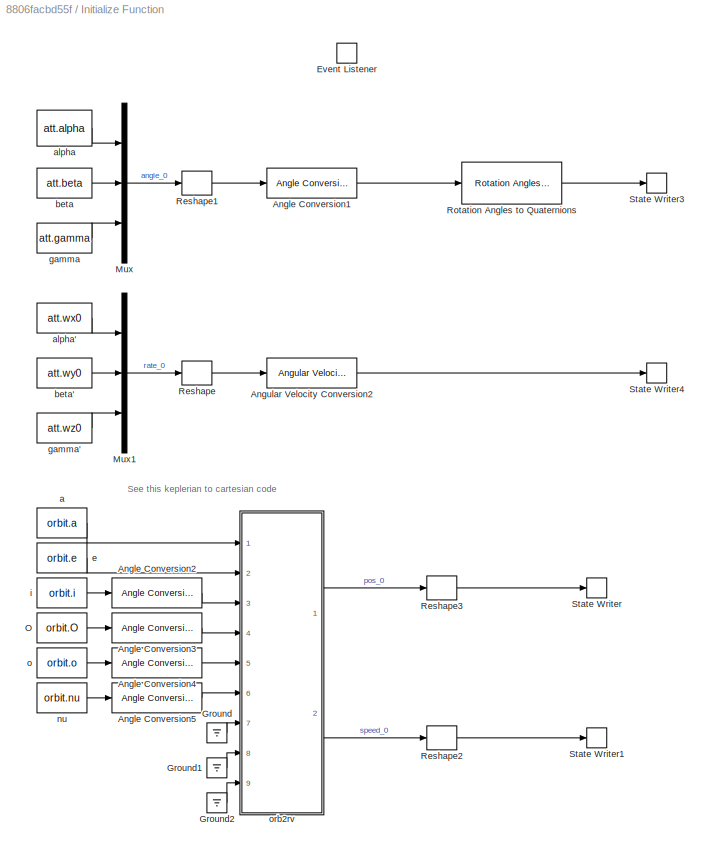
BLOCK [SubSystem] Initialize Function
  Ports = []
  RequestExecContextInheritance = off
  TreatAsAtomicUnit = on
BLOCK [Reference] Initialize Function/Angle Conversion1  REF=aerolibconvert2/Angle Conversion
  Ports = [1, 1]
  SourceBlock = aerolibconvert2/Angle Conversion
  SourceProductBaseCode = AE
  SourceType = Angle Conversion
BLOCK [Reference] Initialize Function/Angle Conversion2  REF=aerolibconvert2/Angle Conversion
  Ports = [1, 1]
  SourceBlock = aerolibconvert2/Angle Conversion
  SourceProductBaseCode = AE
  SourceType = Angle Conversion
BLOCK [Reference] Initialize Function/Angle Conversion3  REF=aerolibconvert2/Angle Conversion
  Ports = [1, 1]
  SourceBlock = aerolibconvert2/Angle Conversion
  SourceProductBaseCode = AE
  SourceType = Angle Conversion
BLOCK [Reference] Initialize Function/Angle Conversion4  REF=aerolibconvert2/Angle Conversion
  Ports = [1, 1]
  SourceBlock = aerolibconvert2/Angle Conversion
  SourceProductBaseCode = AE
  SourceType = Angle Conversion
BLOCK [Reference] Initialize Function/Angle Conversion5  REF=aerolibconvert2/Angle Conversion
  Ports = [1, 1]
  SourceBlock = aerolibconvert2/Angle Conversion
  SourceProductBaseCode = AE
  SourceType = Angle Conversion
BLOCK [Reference] Initialize Function/Angular Velocity Conversion2  REF=aerolibconvert2/Angular Velocity
Conversion
  Ports = [1, 1]
  SourceBlock = aerolibconvert2/Angular Velocity\nConversion
  SourceProductBaseCode = AE
  SourceType = Angular Velocity Conversion
BLOCK [EventListener] Initialize Function/Event Listener
  DisableCoverage = on
  EventName = reset
BLOCK [Ground] Initialize Function/Ground
BLOCK [Ground] Initialize Function/Ground1
BLOCK [Ground] Initialize Function/Ground2
BLOCK [Mux] Initialize Function/Mux
  DisplayOption = bar
  Inputs = 3
  Ports = [3, 1]
BLOCK [Mux] Initialize Function/Mux1
  DisplayOption = bar
  Inputs = 3
  Ports = [3, 1]
BLOCK [Constant] Initialize Function/O
  Value = orbit.O
BLOCK [Reshape] Initialize Function/Reshape
  OutputDimensionality = Column vector (2-D)
  Ports = [1, 1]
BLOCK [Reshape] Initialize Function/Reshape1
  OutputDimensionality = Column vector (2-D)
  Ports = [1, 1]
BLOCK [Reshape] Initialize Function/Reshape2
  OutputDimensionality = Column vector (2-D)
  Ports = [1, 1]
BLOCK [Reshape] Initialize Function/Reshape3
  OutputDimensionality = Column vector (2-D)
  Ports = [1, 1]
BLOCK [Reference] Initialize Function/Rotation Angles to Quaternions  REF=sharedtransform/Rotation Angles to Quaternions
  AttributesFormatString = Rotation Order: %<rotationOrder>
  Ports = [1, 1]
  SourceBlock = sharedtransform/Rotation Angles to Quaternions
  SourceProductBaseCode = AE,PW,MT,UV,VE,VP
  SourceType = Ang2Quat
BLOCK [StateWriter] Initialize Function/State Writer
  StateOwnerBlock = ../../Keplerian Propagator/Integrator
BLOCK [StateWriter] Initialize Function/State Writer1
  StateOwnerBlock = ../../Keplerian Propagator/Integrator1
BLOCK [StateWriter] Initialize Function/State Writer3
  StateOwnerBlock = ../../Physical Model/6DOF in ECI frame/Compute Q_ECI/Integrator_quat
BLOCK [StateWriter] Initialize Function/State Writer4
  StateOwnerBlock = ../../Physical Model/6DOF in ECI frame/Integrator_rate
BLOCK [Constant] Initialize Function/a
  Value = orbit.a
BLOCK [Constant] Initialize Function/alpha
  Value = att.alpha
BLOCK [Constant] Initialize Function/alpha'
  Value = att.wx0
BLOCK [Constant] Initialize Function/beta
  Value = att.beta
BLOCK [Constant] Initialize Function/beta'
  Value = att.wy0
BLOCK [Constant] Initialize Function/e
  Value = orbit.e
BLOCK [Constant] Initialize Function/gamma
  Value = att.gamma
BLOCK [Constant] Initialize Function/gamma'
  Value = att.wz0
BLOCK [Constant] Initialize Function/i
  Value = orbit.i
BLOCK [Constant] Initialize Function/nu
  Value = orbit.nu
BLOCK [Constant] Initialize Function/o
  Value = orbit.o
BLOCK [SubSystem] Initialize Function/orb2rv
  ErrorFcn = Stateflow.Translate.translate
  PermitHierarchicalResolution = ExplicitOnly
  Ports = [9, 2]
  RequestExecContextInheritance = off
  SFBlockType = MATLAB Function
  TreatAsAtomicUnit = on
BLOCK [Demux] Initialize Function/orb2rv/ Demux 
  Outputs = 1
  Ports = [1, 1]
BLOCK [S-Function] Initialize Function/orb2rv/ SFunction 
  EnableBusSupport = on
  FunctionName = sf_sfun
  PortCounts = [9 3]
  Ports = [9, 3]
  SFcnIsStateOwnerBlock = off
  SFunctionDeploymentMode = off
  Tag = Stateflow S-Function 2
BLOCK [Terminator] Initialize Function/orb2rv/ Terminator 
BLOCK [Inport] Initialize Function/orb2rv/O
  Port = 4
BLOCK [Inport] Initialize Function/orb2rv/a
BLOCK [Inport] Initialize Function/orb2rv/argLat
  Port = 8
BLOCK [Inport] Initialize Function/orb2rv/e
  Port = 2
BLOCK [Inport] Initialize Function/orb2rv/i
  Port = 3
BLOCK [Inport] Initialize Function/orb2rv/lonPer
  Port = 9
BLOCK [Inport] Initialize Function/orb2rv/nu
  Port = 6
BLOCK [Inport] Initialize Function/orb2rv/o
  Port = 5
BLOCK [Outport] Initialize Function/orb2rv/r
  VectorParamsAs1DForOutWhenUnconnected = off
BLOCK [Inport] Initialize Function/orb2rv/truLon
  Port = 7
BLOCK [Outport] Initialize Function/orb2rv/v
  Port = 2
  VectorParamsAs1DForOutWhenUnconnected = off
BLOCK [SubSystem] Keplerian Propagator
  Ports = [1, 2]
  RequestExecContextInheritance = off
BLOCK [Constant] Keplerian Propagator/Constant
  Value = [0;0;0]
BLOCK [Demux] Keplerian Propagator/Demux
  Outputs = 2
  Ports = [1, 2]
BLOCK [Inport] Keplerian Propagator/In1
BLOCK [Integrator] Keplerian Propagator/Integrator
  Ports = [1, 1]
BLOCK [Integrator] Keplerian Propagator/Integrator1
  Ports = [1, 1]
BLOCK [Mux] Keplerian Propagator/Mux
  DisplayOption = bar
  Inputs = 2
  Ports = [2, 1]
BLOCK [Mux] Keplerian Propagator/Mux1
  DisplayOption = bar
  Inputs = 2
  Ports = [2, 1]
BLOCK [Reshape] Keplerian Propagator/Reshape1
  OutputDimensionality = Customize
  OutputDimensions = [6,1]
  Ports = [1, 1]
BLOCK [Reshape] Keplerian Propagator/Reshape3
  OutputDimensionality = Column vector (2-D)
  Ports = [1, 1]
BLOCK [MATLABFcn] Keplerian Propagator/keplerian propagator
  MATLABFcn = kep_propagator
  Ports = [1, 1]
BLOCK [Outport] Keplerian Propagator/pos_ECI
BLOCK [Outport] Keplerian Propagator/vel_ECI
  Port = 2
BLOCK [Scope] Mag_Moments
  Floating = off
  NumInputPorts = 1
  Ports = [1]
  ScopeSpecificationString = Simulink.scopes.TimeScopeBlockCfg('CurrentConfiguration', extmgr.ConfigurationSet(extmgr.Configuration('Core','General UI',true),extmgr.Configuration('Core','Source UI',true),extmgr.Configuration('Sources','WiredSimulink',true,'DataLoggingVariableName','ScopeData3'),extmgr.Configuration('Visuals','Time Domain',true,'SerializedDisplays',{struct('MinYLimReal','-0.7625','MaxYLimReal','0.7625','YLabel...<+1399ch>
BLOCK [Scope] Mag_Torque
  Floating = off
  NumInputPorts = 1
  Ports = [1]
  ScopeSpecificationString = Simulink.scopes.TimeScopeBlockCfg('CurrentConfiguration', extmgr.ConfigurationSet(extmgr.Configuration('Core','General UI',true),extmgr.Configuration('Core','Source UI',true),extmgr.Configuration('Sources','WiredSimulink',true,'DataLoggingVariableName','ScopeData2'),extmgr.Configuration('Visuals','Time Domain',true,'SerializedDisplays',{struct('MinYLimReal','-0.000003','MaxYLimReal','0.000031','YL...<+1417ch>
BLOCK [Reference] Normalize Vector  REF=vrlib/Utilities/Normalize Vector
  Ports = [1, 1]
  SourceBlock = vrlib/Utilities/Normalize Vector
  SourceProductBaseCode = SL
  SourceType = Normalize Vector
BLOCK [SubSystem] Physical Model
  MinAlgLoopOccurrences = on
  Ports = [6, 2]
  RequestExecContextInheritance = off
BLOCK [SubSystem] Physical Model/6DOF in ECI frame
  Ports = [5, 2]
  RequestExecContextInheritance = off
BLOCK [Inport] Physical Model/6DOF in ECI frame/<Q_ECI>
BLOCK [Sum] Physical Model/6DOF in ECI frame/Add1
  IconShape = rectangular
  Inputs = --++
  Ports = [4, 1]
BLOCK [SubSystem] Physical Model/6DOF in ECI frame/Compute Q_ECI
  Ports = [2, 1]
  RequestExecContextInheritance = off
BLOCK [Inport] Physical Model/6DOF in ECI frame/Compute Q_ECI/<Q_ECI>
BLOCK [Gain] Physical Model/6DOF in ECI frame/Compute Q_ECI/Gain
  Gain = 1/2
BLOCK [Ground] Physical Model/6DOF in ECI frame/Compute Q_ECI/Ground
BLOCK [Integrator] Physical Model/6DOF in ECI frame/Compute Q_ECI/Integrator_quat
  InitialCondition = [1 0 0 0]
  Ports = [1, 1]
BLOCK [Mux] Physical Model/6DOF in ECI frame/Compute Q_ECI/Mux
  DisplayOption = bar
  Inputs = 2
  Ports = [2, 1]
BLOCK [Inport] Physical Model/6DOF in ECI frame/Compute Q_ECI/Omega_body
  Port = 2
BLOCK [Outport] Physical Model/6DOF in ECI frame/Compute Q_ECI/Q_ECI
  VectorParamsAs1DForOutWhenUnconnected = off
BLOCK [Reference] Physical Model/6DOF in ECI frame/Compute Q_ECI/Quaternion Multiplication  REF=aerolibutil/Quaternion
Multiplication
  Ports = [2, 1]
  SourceBlock = aerolibutil/Quaternion\nMultiplication
  SourceProductBaseCode = AE
  SourceType = Quaternion Multiplication
BLOCK [Reference] Physical Model/6DOF in ECI frame/Compute Q_ECI/Quaternion Normalize  REF=sharedutil/Quaternion
Normalize
  Ports = [1, 1]
  SourceBlock = sharedutil/Quaternion\nNormalize
  SourceProductBaseCode = AE,PW,MT,UV,VE,VP
  SourceType = Quaternion Normalize
BLOCK [Constant] Physical Model/6DOF in ECI frame/Constant
  Value = sat.wheel.repartition_matrix_3RW
BLOCK [Constant] Physical Model/6DOF in ECI frame/Constant1
  Value = sat.wheel.repartition_matrix_4RW
BLOCK [Reference] Physical Model/6DOF in ECI frame/Cross Product  REF=vrlib/Utilities/Cross Product
  Ports = [2, 1]
  SourceBlock = vrlib/Utilities/Cross Product
  SourceProductBaseCode = SL
  SourceType = Cross Product
BLOCK [Derivative] Physical Model/6DOF in ECI frame/Derivative
BLOCK [Integrator] Physical Model/6DOF in ECI frame/Integrator_rate
  Ports = [1, 1]
BLOCK [Inport] Physical Model/6DOF in ECI frame/OmegaWheels
  Port = 3
BLOCK [Inport] Physical Model/6DOF in ECI frame/Omega_Body 
  Port = 2
BLOCK [Product] Physical Model/6DOF in ECI frame/Product2
  Inputs = /*
  Multiplication = Matrix(*)
  Ports = [2, 1]
BLOCK [Product] Physical Model/6DOF in ECI frame/Product3
  Multiplication = Matrix(*)
  Ports = [2, 1]
BLOCK [Product] Physical Model/6DOF in ECI frame/Product4
  Multiplication = Matrix(*)
  Ports = [2, 1]
BLOCK [Outport] Physical Model/6DOF in ECI frame/Q_ECI
  VectorParamsAs1DForOutWhenUnconnected = off
BLOCK [Reference] Physical Model/6DOF in ECI frame/Quaternion Rotation1  REF=aerolibutil/Quaternion
Rotation
  Ports = [2, 1]
  SourceBlock = aerolibutil/Quaternion\nRotation
  SourceProductBaseCode = AE
  SourceType = Quaternion Rotation
BLOCK [Constant] Physical Model/6DOF in ECI frame/RW Inertia
  Value = eye(sat.wheel.number)*sat.wheel.inertia
BLOCK [Reshape] Physical Model/6DOF in ECI frame/Reshape1
  OutputDimensionality = Column vector (2-D)
  Ports = [1, 1]
BLOCK [Reshape] Physical Model/6DOF in ECI frame/Reshape3
  OutputDimensionality = Column vector (2-D)
  Ports = [1, 1]
BLOCK [Reshape] Physical Model/6DOF in ECI frame/Reshape4
  OutputDimensionality = Column vector (2-D)
  Ports = [1, 1]
BLOCK [Constant] Physical Model/6DOF in ECI frame/Sat Inertia
  Value = sat.inertia
BLOCK [Scope] Physical Model/6DOF in ECI frame/Scope
  Floating = off
  NumInputPorts = 1
  Ports = [1]
  ScopeSpecificationString = Simulink.scopes.TimeScopeBlockCfg('CurrentConfiguration', extmgr.ConfigurationSet(extmgr.Configuration('Core','General UI',true),extmgr.Configuration('Core','Source UI',true),extmgr.Configuration('Sources','WiredSimulink',true,'DataLoggingVariableName','ScopeData1'),extmgr.Configuration('Visuals','Time Domain',true,'SerializedDisplays',{struct('MinYLimReal','-10','MaxYLimReal','10','YLabelReal',''...<+1315ch>
BLOCK [Inport] Physical Model/6DOF in ECI frame/Torque_Body
  Port = 4
BLOCK [Inport] Physical Model/6DOF in ECI frame/Torque_ECI
  Port = 5
  PortDimensions = 3
BLOCK [Outport] Physical Model/6DOF in ECI frame/W_body
  Port = 2
  VectorParamsAs1DForOutWhenUnconnected = off
BLOCK [Sum] Physical Model/Add1
  IconShape = rectangular
  Inputs = +++
  Ports = [3, 1]
BLOCK [Inport] Physical Model/B_IGRF_ECI
  Port = 6
BLOCK [BusCreator] Physical Model/Bus Creator
  DisplayOption = bar
  InheritFromInputs = on
  Inputs = 4
  Ports = [4, 1]
BLOCK [BusCreator] Physical Model/Bus Creator1
  DisplayOption = bar
  InheritFromInputs = on
  Inputs = 2
  Ports = [2, 1]
BLOCK [BusSelector] Physical Model/Bus Selector
  OutputSignals = Q_ECI,W_body
  Ports = [1, 2]
BLOCK [BusSelector] Physical Model/Bus Selector1
  OutputSignals = RWSpeed_Command,Magnetotorquer_Command
  Ports = [1, 2]
BLOCK [Inport] Physical Model/Command
  Port = 3
BLOCK [Inport] Physical Model/DistTorque (Body)
  Port = 5
BLOCK [Ground] Physical Model/Ground
BLOCK [Outport] Physical Model/Mag_Moment
  Port = 2
  VectorParamsAs1DForOutWhenUnconnected = off
BLOCK [SubSystem] Physical Model/Magnetorquer physics
  Ports = [2, 2]
  RequestExecContextInheritance = off
BLOCK [Sum] Physical Model/Magnetorquer physics/Add1
  IconShape = rectangular
  Inputs = +++
  Ports = [3, 1]
BLOCK [Inport] Physical Model/Magnetorquer physics/B_IGRF_body (vecteur)
  Port = 2
BLOCK [Outport] Physical Model/Magnetorquer physics/Couple (vect)
  PortDimensions = 3
  VectorParamsAs1DForOutWhenUnconnected = off
BLOCK [Reference] Physical Model/Magnetorquer physics/Cross Product  REF=vrlib/Utilities/Cross Product
  Ports = [2, 1]
  SourceBlock = vrlib/Utilities/Cross Product
  SourceProductBaseCode = SL
  SourceType = Cross Product
BLOCK [Demux] Physical Model/Magnetorquer physics/Demux
  Outputs = 3
  Ports = [1, 3]
BLOCK [Inport] Physical Model/Magnetorquer physics/Mag vector command
BLOCK [SubSystem] Physical Model/Magnetorquer physics/Magnétocoupleur 1
  Ports = [1, 1]
  RequestExecContextInheritance = off
BLOCK [Constant] Physical Model/Magnetorquer physics/Magnétocoupleur 1/Constant1
  Value = sat.mag_t.max_mm1
BLOCK [Constant] Physical Model/Magnetorquer physics/Magnétocoupleur 1/Constant2
  Value = - sat.mag_t.max_mm1
BLOCK [Constant] Physical Model/Magnetorquer physics/Magnétocoupleur 1/Constant6
  Value = sat.mag_t.axe1
BLOCK [Product] Physical Model/Magnetorquer physics/Magnétocoupleur 1/Product
  Ports = [2, 1]
BLOCK [Reference] Physical Model/Magnetorquer physics/Magnétocoupleur 1/Saturation Dynamic  REF=simulink/Discontinuities/Saturation
Dynamic
  Ports = [3, 1]
  SourceBlock = simulink/Discontinuities/Saturation\nDynamic
  SourceProductBaseCode = SL
  SourceType = Saturation Dynamic
BLOCK [Inport] Physical Model/Magnetorquer physics/Magnétocoupleur 1/m_in (scalar)
BLOCK [Outport] Physical Model/Magnetorquer physics/Magnétocoupleur 1/m_out (vect)
  VectorParamsAs1DForOutWhenUnconnected = off
BLOCK [SubSystem] Physical Model/Magnetorquer physics/Magnétocoupleur 2
  Ports = [1, 1]
  RequestExecContextInheritance = off
BLOCK [Constant] Physical Model/Magnetorquer physics/Magnétocoupleur 2/Constant
  Value = - sat.mag_t.max_mm2
BLOCK [Constant] Physical Model/Magnetorquer physics/Magnétocoupleur 2/Constant1
  Value = sat.mag_t.max_mm2
BLOCK [Constant] Physical Model/Magnetorquer physics/Magnétocoupleur 2/Constant6
  Value = sat.mag_t.axe2
BLOCK [Product] Physical Model/Magnetorquer physics/Magnétocoupleur 2/Product
  Ports = [2, 1]
BLOCK [Reference] Physical Model/Magnetorquer physics/Magnétocoupleur 2/Saturation Dynamic  REF=simulink/Discontinuities/Saturation
Dynamic
  Ports = [3, 1]
  SourceBlock = simulink/Discontinuities/Saturation\nDynamic
  SourceProductBaseCode = SL
  SourceType = Saturation Dynamic
BLOCK [Inport] Physical Model/Magnetorquer physics/Magnétocoupleur 2/m_in (scalar)
BLOCK [Outport] Physical Model/Magnetorquer physics/Magnétocoupleur 2/m_out (vect)
  VectorParamsAs1DForOutWhenUnconnected = off
BLOCK [SubSystem] Physical Model/Magnetorquer physics/Magnétocoupleur 3
  Ports = [1, 1]
  RequestExecContextInheritance = off
BLOCK [Constant] Physical Model/Magnetorquer physics/Magnétocoupleur 3/Constant1
  Value = sat.mag_t.max_mm3
BLOCK [Constant] Physical Model/Magnetorquer physics/Magnétocoupleur 3/Constant2
  Value = - sat.mag_t.max_mm3
BLOCK [Constant] Physical Model/Magnetorquer physics/Magnétocoupleur 3/Constant6
  Value = sat.mag_t.axe3
BLOCK [Product] Physical Model/Magnetorquer physics/Magnétocoupleur 3/Product
  Ports = [2, 1]
BLOCK [Reference] Physical Model/Magnetorquer physics/Magnétocoupleur 3/Saturation Dynamic  REF=simulink/Discontinuities/Saturation
Dynamic
  Ports = [3, 1]
  SourceBlock = simulink/Discontinuities/Saturation\nDynamic
  SourceProductBaseCode = SL
  SourceType = Saturation Dynamic
BLOCK [Inport] Physical Model/Magnetorquer physics/Magnétocoupleur 3/m_in (scalar)
BLOCK [Outport] Physical Model/Magnetorquer physics/Magnétocoupleur 3/m_out (vect)
  VectorParamsAs1DForOutWhenUnconnected = off
BLOCK [Outport] Physical Model/Magnetorquer physics/Real mag moments vector
  Port = 2
  VectorParamsAs1DForOutWhenUnconnected = off
BLOCK [Reference] Physical Model/Quaternion Rotation  REF=aerolibutil/Quaternion
Rotation
  Ports = [2, 1]
  SourceBlock = aerolibutil/Quaternion\nRotation
  SourceProductBaseCode = AE
  SourceType = Quaternion Rotation
BLOCK [Terminator] Physical Model/Terminator
BLOCK [SubSystem] Physical Model/Thruster
  Ports = [1, 2]
  RequestExecContextInheritance = off
BLOCK [Inport] Physical Model/Thruster (Boolean)
  Port = 4
BLOCK [Constant] Physical Model/Thruster/Constant
  Value = 0
BLOCK [Reference] Physical Model/Thruster/Cross Product  REF=vrlib/Utilities/Cross Product
  Ports = [2, 1]
  SourceBlock = vrlib/Utilities/Cross Product
  SourceProductBaseCode = SL
  SourceType = Cross Product
BLOCK [Outport] Physical Model/Thruster/Force (G_sat)
  VectorParamsAs1DForOutWhenUnconnected = off
BLOCK [If] Physical Model/Thruster/If
  IfExpression = u1
  Ports = [1, 2]
BLOCK [SubSystem] Physical Model/Thruster/If Action Subsystem
  Ports = [1, 1, 0, 0, 0, 0, 0, 1]
  RequestExecContextInheritance = off
  TreatAsAtomicUnit = on
BLOCK [ActionPort] Physical Model/Thruster/If Action Subsystem/Action Port
  ActionPortLabel = if(u1)
BLOCK [Inport] Physical Model/Thruster/If Action Subsystem/In1
BLOCK [Outport] Physical Model/Thruster/If Action Subsystem/Out1
BLOCK [SubSystem] Physical Model/Thruster/If Action Subsystem1
  Ports = [1, 1, 0, 0, 0, 0, 0, 1]
  RequestExecContextInheritance = off
  TreatAsAtomicUnit = on
BLOCK [ActionPort] Physical Model/Thruster/If Action Subsystem1/Action Port
  ActionPortLabel = else
BLOCK [Inport] Physical Model/Thruster/If Action Subsystem1/In1
BLOCK [Outport] Physical Model/Thruster/If Action Subsystem1/Out1
BLOCK [Merge] Physical Model/Thruster/Merge
  Ports = [2, 1]
BLOCK [Outport] Physical Model/Thruster/Moment (G_sat)
  Port = 2
  VectorParamsAs1DForOutWhenUnconnected = off
BLOCK [Inport] Physical Model/Thruster/On//Off (Boolean)
  OutDataTypeStr = boolean
BLOCK [Product] Physical Model/Thruster/Product
  Ports = [2, 1]
BLOCK [Constant] Physical Model/Thruster/Thruster Force
  Value = sat.thruster.force
BLOCK [Constant] Physical Model/Thruster/unit vector of thrust
  Value = sat.thruster.dir
BLOCK [Constant] Physical Model/Thruster/vector G-Thrust point
  Value = sat.thruster.point
BLOCK [Outport] Physical Model/U_out
  VectorParamsAs1DForOutWhenUnconnected = off
BLOCK [Inport] Physical Model/pos_ECI
BLOCK [Inport] Physical Model/vel_ECI
  Port = 2
BLOCK [Reference] Planetary Ephemeris  REF=aerolibcelestial/Planetary Ephemeris
  Ports = [1, 1]
  SourceBlock = aerolibcelestial/Planetary Ephemeris
  SourceProductBaseCode = AE
  SourceType = PlanetaryEphemeris
BLOCK [SubSystem] QuatToAngleDeg
  NameLocation = top
  Ports = [1, 1]
  RequestExecContextInheritance = off
BLOCK [Abs] QuatToAngleDeg/Abs
  SaturateOnIntegerOverflow = off
BLOCK [Reference] QuatToAngleDeg/Angle Conversion1  REF=aerolibconvert2/Angle Conversion
  Ports = [1, 1]
  SourceBlock = aerolibconvert2/Angle Conversion
  SourceProductBaseCode = AE
  SourceType = Angle Conversion
BLOCK [Demux] QuatToAngleDeg/Demux1
  Ports = [1, 4]
BLOCK [Inport] QuatToAngleDeg/In1
BLOCK [MATLABFcn] QuatToAngleDeg/Quaternion to axis and angle conversion
  MATLABFcn = quat2axisangle
  Ports = [1, 1]
BLOCK [Terminator] QuatToAngleDeg/Terminator1
BLOCK [Terminator] QuatToAngleDeg/Terminator2
BLOCK [Terminator] QuatToAngleDeg/Terminator3
BLOCK [Outport] QuatToAngleDeg/angle deg
  VectorParamsAs1DForOutWhenUnconnected = off
BLOCK [Reference] Quaternion Inverse  REF=aerolibutil/Quaternion
Inverse
  Ports = [1, 1]
  SourceBlock = aerolibutil/Quaternion\nInverse
  SourceProductBaseCode = AE
  SourceType = Quaternion Inverse
BLOCK [Reference] Quaternion Multiplication  REF=aerolibutil/Quaternion
Multiplication
  Ports = [2, 1]
  SourceBlock = aerolibutil/Quaternion\nMultiplication
  SourceProductBaseCode = AE
  SourceType = Quaternion Multiplication
BLOCK [Scope] Quaternions
  Floating = off
  NumInputPorts = 2
  Ports = [2]
  ScopeSpecificationString = Simulink.scopes.TimeScopeBlockCfg('CurrentConfiguration', extmgr.ConfigurationSet(extmgr.Configuration('Core','General UI',true),extmgr.Configuration('Core','Source UI',true),extmgr.Configuration('Sources','WiredSimulink',true,'DataLoggingVariableName','ScopeData5'),extmgr.Configuration('Visuals','Time Domain',true,'SerializedDisplays',{struct('MinYLimReal','-1.19079','MaxYLimReal','1.06592','YLab...<+2383ch>
BLOCK [Reference] Quaternions to Rotation Angles  REF=sharedtransform/Quaternions to Rotation Angles
  AttributesFormatString = Rotation Order: %<rotationOrder>
  Ports = [1, 1]
  SourceBlock = sharedtransform/Quaternions to Rotation Angles
  SourceProductBaseCode = AE,PW,MT,UV,VE,VP
  SourceType = Quat2Ang
BLOCK [Scope] RW Speed
  Floating = off
  NumInputPorts = 1
  Ports = [1]
  ScopeSpecificationString = Simulink.scopes.TimeScopeBlockCfg('CurrentConfiguration', extmgr.ConfigurationSet(extmgr.Configuration('Core','General UI',true,'FigureColor',[0 0 0]),extmgr.Configuration('Core','Source UI',true),extmgr.Configuration('Sources','WiredSimulink',true,'DataLoggingVariableName','ScopeData9'),extmgr.Configuration('Visuals','Time Domain',true,'SerializedDisplays',{struct('MinYLimReal','-98.35187','MaxYL...<+2088ch>
BLOCK [SubSystem] Signal Logging
  Ports = [3]
  RequestExecContextInheritance = off
BLOCK [BusSelector] Signal Logging/Bus Selector
  OutputSignals = RWSpeed_Command,Magnetotorquer_Command
  Ports = [1, 2]
BLOCK [BusSelector] Signal Logging/Bus Selector4
  OutputSignals = XYZ_ECI,VxVyVz_ECI,Q_ECI,W_body
  Ports = [1, 4]
BLOCK [Inport] Signal Logging/Command
  Port = 2
BLOCK [Inport] Signal Logging/Qref
  Port = 3
BLOCK [Reshape] Signal Logging/Reshape
  Ports = [1, 1]
BLOCK [Reshape] Signal Logging/Reshape1
  Ports = [1, 1]
BLOCK [Reshape] Signal Logging/Reshape2
  Ports = [1, 1]
BLOCK [ToWorkspace] Signal Logging/To Workspace
  FixptAsFi = on
  MaxDataPoints = inf
  Ports = [1]
  SampleTime = 1
  Save2DSignal = 2-D array (concatenate along first dimension)
  SaveFormat = Timeseries
  VariableName = sat_pos
BLOCK [ToWorkspace] Signal Logging/To Workspace1
  FixptAsFi = on
  MaxDataPoints = inf
  Ports = [1]
  SampleTime = 1
  Save2DSignal = 2-D array (concatenate along first dimension)
  SaveFormat = Timeseries
  VariableName = sat_speed
BLOCK [ToWorkspace] Signal Logging/To Workspace2
  FixptAsFi = on
  MaxDataPoints = inf
  Ports = [1]
  SampleTime = 1
  Save2DSignal = 2-D array (concatenate along first dimension)
  SaveFormat = Timeseries
  VariableName = sat_Q
BLOCK [ToWorkspace] Signal Logging/To Workspace3
  FixptAsFi = on
  MaxDataPoints = inf
  Ports = [1]
  SampleTime = 1
  Save2DSignal = 2-D array (concatenate along first dimension)
  SaveFormat = Timeseries
  VariableName = sat_omega
BLOCK [ToWorkspace] Signal Logging/To Workspace4
  FixptAsFi = on
  MaxDataPoints = inf
  Ports = [1]
  SampleTime = 1
  Save2DSignal = 2-D array (concatenate along first dimension)
  SaveFormat = Timeseries
  VariableName = RWSpeed_Command
BLOCK [ToWorkspace] Signal Logging/To Workspace5
  FixptAsFi = on
  MaxDataPoints = inf
  Ports = [1]
  SampleTime = 1
  Save2DSignal = 2-D array (concatenate along first dimension)
  SaveFormat = Timeseries
  VariableName = sat_Qc
BLOCK [ToWorkspace] Signal Logging/To Workspace6
  FixptAsFi = on
  MaxDataPoints = inf
  Ports = [1]
  SampleTime = 1
  Save2DSignal = 2-D array (concatenate along first dimension)
  SaveFormat = Timeseries
  VariableName = Mag_Command
BLOCK [Inport] Signal Logging/U
BLOCK [Sqrt] Sqrt
BLOCK [SubSystem] Subsystem1
  Ports = [2, 1]
  RequestExecContextInheritance = off
BLOCK [Inport] Subsystem1/<Q_ECI>
BLOCK [Inport] Subsystem1/B_ECI
  Port = 2
BLOCK [Outport] Subsystem1/B_body
BLOCK [Reference] Subsystem1/Quaternion Rotation  REF=aerolibutil/Quaternion
Rotation
  Ports = [2, 1]
  SourceBlock = aerolibutil/Quaternion\nRotation
  SourceProductBaseCode = AE
  SourceType = Quaternion Rotation
BLOCK [Sum] Sum
  Inputs = |+-
  Ports = [2, 1]
BLOCK [SubSystem] Time propagator
  Ports = [1, 2]
  RequestExecContextInheritance = off
BLOCK [Sum] Time propagator/Add
  Inputs = |++
  Ports = [2, 1]
BLOCK [Inport] Time propagator/Clock
BLOCK [Constant] Time propagator/Constant
  Value = 86400
BLOCK [Constant] Time propagator/Day
  Value = date.day
BLOCK [Product] Time propagator/Divide
  Inputs = */
  Ports = [2, 1]
BLOCK [Constant] Time propagator/HH
  Value = date.hours
BLOCK [SubSystem] Time propagator/JD to UTC
  ErrorFcn = Stateflow.Translate.translate
  PermitHierarchicalResolution = ExplicitOnly
  Ports = [1, 1]
  RequestExecContextInheritance = off
  SFBlockType = MATLAB Function
  TreatAsAtomicUnit = on
BLOCK [Demux] Time propagator/JD to UTC/ Demux 
  Outputs = 1
  Ports = [1, 1]
BLOCK [S-Function] Time propagator/JD to UTC/ SFunction 
  EnableBusSupport = on
  FunctionName = sf_sfun
  PortCounts = [1 2]
  Ports = [1, 2]
  SFcnIsStateOwnerBlock = off
  SFunctionDeploymentMode = off
  Tag = Stateflow S-Function 8
BLOCK [Terminator] Time propagator/JD to UTC/ Terminator 
BLOCK [Inport] Time propagator/JD to UTC/JD
BLOCK [Outport] Time propagator/JD to UTC/Time_UTC
  VectorParamsAs1DForOutWhenUnconnected = off
BLOCK [Constant] Time propagator/MM
  Value = date.minutes
BLOCK [Constant] Time propagator/Month
  Value = date.month
BLOCK [Mux] Time propagator/Mux
  DisplayOption = bar
  Inputs = 6
  Ports = [6, 1]
BLOCK [Reshape] Time propagator/Reshape
  Ports = [1, 1]
BLOCK [Constant] Time propagator/SS
  Value = date.seconds
BLOCK [ToWorkspace] Time propagator/Signal logging
  FixptAsFi = on
  MaxDataPoints = inf
  Ports = [1]
  SampleTime = 1
  Save2DSignal = 2-D array (concatenate along first dimension)
  SaveFormat = Timeseries
  VariableName = T_UTC
BLOCK [ToWorkspace] Time propagator/Signal logging1
  FixptAsFi = on
  MaxDataPoints = inf
  Ports = [1]
  SampleTime = 1
  Save2DSignal = 2-D array (concatenate along first dimension)
  SaveFormat = Timeseries
  VariableName = T_JD
BLOCK [Outport] Time propagator/T_JD
  Port = 2
  VectorParamsAs1DForOutWhenUnconnected = off
BLOCK [Outport] Time propagator/T_UTC
  VectorParamsAs1DForOutWhenUnconnected = off
BLOCK [SubSystem] Time propagator/UTC to JD
  ErrorFcn = Stateflow.Translate.translate
  PermitHierarchicalResolution = ExplicitOnly
  Ports = [1, 1]
  RequestExecContextInheritance = off
  SFBlockType = MATLAB Function
  TreatAsAtomicUnit = on
BLOCK [Demux] Time propagator/UTC to JD/ Demux 
  Outputs = 1
  Ports = [1, 1]
BLOCK [S-Function] Time propagator/UTC to JD/ SFunction 
  EnableBusSupport = on
  FunctionName = sf_sfun
  PortCounts = [1 2]
  Ports = [1, 2]
  SFcnIsStateOwnerBlock = off
  SFunctionDeploymentMode = off
  Tag = Stateflow S-Function 7
BLOCK [Terminator] Time propagator/UTC to JD/ Terminator 
BLOCK [Outport] Time propagator/UTC to JD/JD
  VectorParamsAs1DForOutWhenUnconnected = off
BLOCK [Inport] Time propagator/UTC to JD/Time_UTC
BLOCK [Constant] Time propagator/Year
  Value = date.year
ANNOTATION (root): Signal logging
ANNOTATION (root): Viewer
ANNOTATION Attitude Controller: Choix d'un contrôleur PID : plus simple et robuste qu'un LQR/SliddingSurface ou autre
ANNOTATION Attitude Controller: Runs as fast as possible
ANNOTATION Attitude Controller: Runs at 1Hz
ANNOTATION Attitude Controller/B-dot command: ref : OneDrive\IonSat X18\SCAO\Contrôle attitude\Detumbling\Detumbling and Aerostable Control for Cubesats.pdf formulae: $\mathbf{\dot B} \simeq \mathbf{B}\times \mathbf{\dot \theta}$ $\mathbf{m} = -c\mathbf{\dot B}$ this block does NOT decide if the B-dot mode is relevant or not (it applies it without question on the rotation rate : $\Omega=v/r= \sqrt{\frac{Gm_{earth}}{(h+r_{earth})^{3/2}}} \sim ...<+124ch>
ANNOTATION Attitude Controller/B-dot command: entrée: champ magnétique sortie: moment magnetique de commande et vitesse des roues à réaction (nulle)
ANNOTATION Attitude Controller/PID (nominal command): on projete T dans le plan perpendiculaire à B ? Pas obligatoire (cf définition des blocs)
ANNOTATION Attitude Controller/PID (nominal command)/Command Magnetic moments computation: Moment magnétique de commande M : $M_c = \frac{1}{B²}\vec{B} \wedge\vec{T_P}$ Avec Tp couple projeté dans le plan orthogonal à B $T_P=\vec{T}-\frac{1}{B²}(\vec{T}\cdot\vec{B})\vec{B}$
ANNOTATION Attitude Controller/PID (nominal command)/RW1: Entrées: - Moment de commande (déjà projeté sur l'axe de la roue...) Sorties: - Omega de commande à appliquer
ANNOTATION Attitude Controller/PID (nominal command)/RW2: Entrées: - Moment de commande (déjà projeté sur l'axe de la roue...) Sorties: - Omega de commande à appliquer
ANNOTATION Attitude Controller/PID (nominal command)/RW3: Entrées: - Moment de commande (déjà projeté sur l'axe de la roue...) Sorties: - Omega de commande à appliquer
ANNOTATION Attitude Controller/PID (nominal command)/RW4 : Entrées: - Moment de commande (déjà projeté sur l'axe de la roue...) Sorties: - Omega de commande à appliquer
ANNOTATION DCMi2e: Slower subsytem because it's too slow
ANNOTATION Get Qref and Wref/q_orbital: To get angular velocity from Rotation matrix: https://en.wikipedia.org/wiki/Angular_velocity#Angular_velocity_tensor W= dA/dt * A'
ANNOTATION Get Qref and Wref/q_sun_aero: choix : x selon V z tel que z.GS soit maximisé
ANNOTATION Initialize Function: See this keplerian to cartesian code
ANNOTATION Physical Model/6DOF in ECI frame: See https://en.wikipedia.org/wiki/Rotation_formalisms_in_three_dimensions Quaternion <=> Angular velocity See http://www.diva-portal.org/smash/get/diva2:1020537/FULLTEXT02.pdf for 6DOF equations (3.13 p15) With ω = rotation vector (Omega_body) we have : $\frac{dω}{dt} = I [−ω (t) × (Iω + h_{RW}) + T(t) − \frac{dh_{RW}}{dt} ̇ ]$
ANNOTATION Physical Model/6DOF in ECI frame/Compute Q_ECI: https://arxiv.org/pdf/0811.2889.pdf $ω = 2q^*\frac{dq}{dt}$ (13) $\frac{dq}{dt} = \frac{1}{2} q * ω$ (14)
ANNOTATION Physical Model/Magnetorquer physics: On pourrait aussi changer les blocs magnétocoupleurs pour sortir les intensités
ANNOTATION Physical Model/Magnetorquer physics/Magnétocoupleur 1: les grounds représentant les limites en moment magnétique du magnétocoupleur (lié à l'intensité) A définir
ANNOTATION Physical Model/Magnetorquer physics/Magnétocoupleur 2: les grounds représentant les limites en moment magnétique du magnétocoupleur (lié à l'intensité) A définir
ANNOTATION Physical Model/Magnetorquer physics/Magnétocoupleur 3: les grounds représentant les limites en moment magnétique du magnétocoupleur (lié à l'intensité) A définir
ANNOTATION Time propagator: Time initialization
LINE Angle Conversion:1 -> Attitude error:1
LINE Angular Velocity Conversion1:1 -> RW Speed:1
LINE Angular Velocity Conversion:1 -> Attitude error:2
LINE Attitude Controller/Abs:1 -> Attitude Controller/Max of Elements:1
LINE Attitude Controller/B-dot command/B:1 -> Attitude Controller/B-dot command/Discrete Derivative:1
LINE Attitude Controller/B-dot command/Discrete Derivative:1 -> Attitude Controller/B-dot command/Divide1:1
LINE Attitude Controller/B-dot command/Divide1:1 -> Attitude Controller/B-dot command/Magnetic moment (B-dot):1
LINE Attitude Controller/B-dot command/Reshape2:1 -> Attitude Controller/B-dot command/Wheel command (0):1
LINE Attitude Controller/B-dot command/constant c:1 -> Attitude Controller/B-dot command/Divide1:2
LINE Attitude Controller/B-dot command/wheels unused:1 -> Attitude Controller/B-dot command/Reshape2:1
LINE Attitude Controller/B-dot command:1 -> Attitude Controller/Magnetorquer Magnetic Momend Command:2
LINE Attitude Controller/B-dot command:2 -> Attitude Controller/Reaction Wheels Speed Command:2
NET Attitude Controller/B_Body:1 -> Attitude Controller/B-dot command:1, Attitude Controller/PID (nominal command):4
LINE Attitude Controller/Bus Creator:1 -> Attitude Controller/Command:1
LINE Attitude Controller/Constant1:1 -> Attitude Controller/If Action Subsystem1:1
LINE Attitude Controller/Constant:1 -> Attitude Controller/If Action Subsystem:1
LINE Attitude Controller/If Action Subsystem/In1:1 -> Attitude Controller/If Action Subsystem/Out1:1
LINE Attitude Controller/If Action Subsystem1/In1:1 -> Attitude Controller/If Action Subsystem1/Out1:1
LINE Attitude Controller/If Action Subsystem1:1 -> Attitude Controller/Merge:2
LINE Attitude Controller/If Action Subsystem:1 -> Attitude Controller/Merge:1
LINE Attitude Controller/If:1 -> Attitude Controller/If Action Subsystem:ifaction
LINE Attitude Controller/If:2 -> Attitude Controller/If Action Subsystem1:ifaction
LINE Attitude Controller/Magnetorquer Magnetic Momend Command/ command (normal):1 -> Attitude Controller/Magnetorquer Magnetic Momend Command/Switch Case Action Subsystem4:1
LINE Attitude Controller/Magnetorquer Magnetic Momend Command/B_dot mode (0//1):1 -> Attitude Controller/Magnetorquer Magnetic Momend Command/If1:1
LINE Attitude Controller/Magnetorquer Magnetic Momend Command/Command (B-dot):1 -> Attitude Controller/Magnetorquer Magnetic Momend Command/Switch Case Action Subsystem3:1
LINE Attitude Controller/Magnetorquer Magnetic Momend Command/If1:1 -> Attitude Controller/Magnetorquer Magnetic Momend Command/Switch Case Action Subsystem3:ifaction
LINE Attitude Controller/Magnetorquer Magnetic Momend Command/If1:2 -> Attitude Controller/Magnetorquer Magnetic Momend Command/Switch Case Action Subsystem4:ifaction
LINE Attitude Controller/Magnetorquer Magnetic Momend Command/Merge:1 -> Attitude Controller/Magnetorquer Magnetic Momend Command/output command:1
LINE Attitude Controller/Magnetorquer Magnetic Momend Command/Switch Case Action Subsystem3/In1:1 -> Attitude Controller/Magnetorquer Magnetic Momend Command/Switch Case Action Subsystem3/Out1:1
LINE Attitude Controller/Magnetorquer Magnetic Momend Command/Switch Case Action Subsystem3:1 -> Attitude Controller/Magnetorquer Magnetic Momend Command/Merge:1
LINE Attitude Controller/Magnetorquer Magnetic Momend Command/Switch Case Action Subsystem4/In1:1 -> Attitude Controller/Magnetorquer Magnetic Momend Command/Switch Case Action Subsystem4/Out1:1
LINE Attitude Controller/Magnetorquer Magnetic Momend Command/Switch Case Action Subsystem4:1 -> Attitude Controller/Magnetorquer Magnetic Momend Command/Merge:2
LINE Attitude Controller/Magnetorquer Magnetic Momend Command:1 -> Attitude Controller/Bus Creator:2
NET Attitude Controller/Max of Elements:1 -> Attitude Controller/If:1, Attitude Controller/Scope1:1
NET Attitude Controller/Merge:1 -> Attitude Controller/Magnetorquer Magnetic Momend Command:3, Attitude Controller/PID (nominal command):6, Attitude Controller/Reaction Wheels Speed Command:3, Attitude Controller/Scope:1
LINE Attitude Controller/PID (nominal command)/Abs1:1 -> Attitude Controller/PID (nominal command)/Max of Elements1:1
LINE Attitude Controller/PID (nominal command)/Abs:1 -> Attitude Controller/PID (nominal command)/Max of Elements:1
LINE Attitude Controller/PID (nominal command)/Add1:1 -> Attitude Controller/PID (nominal command)/Subtract:1
LINE Attitude Controller/PID (nominal command)/Add:1 -> Attitude Controller/PID (nominal command)/Product:2
LINE Attitude Controller/PID (nominal command)/Average angular velocity:1 -> Attitude Controller/PID (nominal command)/Scope1:1
LINE Attitude Controller/PID (nominal command)/B_IGRF_Body:1 -> Attitude Controller/PID (nominal command)/Command Magnetic moments computation:2
LINE Attitude Controller/PID (nominal command)/Command Magnetic moments computation/B_IGRF_body (vect):1 -> Attitude Controller/PID (nominal command)/Command Magnetic moments computation/Reshape1:1
LINE Attitude Controller/PID (nominal command)/Command Magnetic moments computation/Command (vect):1 -> Attitude Controller/PID (nominal command)/Command Magnetic moments computation/Reshape:1
LINE Attitude Controller/PID (nominal command)/Command Magnetic moments computation/Cross Product:1 -> Attitude Controller/PID (nominal command)/Command Magnetic moments computation/Product1:1
LINE Attitude Controller/PID (nominal command)/Command Magnetic moments computation/Dot Product:1 -> Attitude Controller/PID (nominal command)/Command Magnetic moments computation/Product1:2
LINE Attitude Controller/PID (nominal command)/Command Magnetic moments computation/Global magnetic moment computation/Dot Product1:1 -> Attitude Controller/PID (nominal command)/Command Magnetic moments computation/Global magnetic moment computation/magnetic moment 2 (scalar):1
LINE Attitude Controller/PID (nominal command)/Command Magnetic moments computation/Global magnetic moment computation/Dot Product2:1 -> Attitude Controller/PID (nominal command)/Command Magnetic moments computation/Global magnetic moment computation/magnetic moment 3 (scalar):1
LINE Attitude Controller/PID (nominal command)/Command Magnetic moments computation/Global magnetic moment computation/Dot Product:1 -> Attitude Controller/PID (nominal command)/Command Magnetic moments computation/Global magnetic moment computation/magnetic moment 1 (scalar):1
NET Attitude Controller/PID (nominal command)/Command Magnetic moments computation/Global magnetic moment computation/In1:1 -> Attitude Controller/PID (nominal command)/Command Magnetic moments computation/Global magnetic moment computation/Dot Product1:1, Attitude Controller/PID (nominal command)/Command Magnetic moments computation/Global magnetic moment computation/Dot Product2:1, Attitude Controller/PID (nominal command)/Command Magnetic moments computation/Global magnetic moment computation/Dot Product:1
LINE Attitude Controller/PID (nominal command)/Command Magnetic moments computation/Global magnetic moment computation/In2:1 -> Attitude Controller/PID (nominal command)/Command Magnetic moments computation/Global magnetic moment computation/Dot Product:2
LINE Attitude Controller/PID (nominal command)/Command Magnetic moments computation/Global magnetic moment computation/In3:1 -> Attitude Controller/PID (nominal command)/Command Magnetic moments computation/Global magnetic moment computation/Dot Product1:2
LINE Attitude Controller/PID (nominal command)/Command Magnetic moments computation/Global magnetic moment computation/In4:1 -> Attitude Controller/PID (nominal command)/Command Magnetic moments computation/Global magnetic moment computation/Dot Product2:2
LINE Attitude Controller/PID (nominal command)/Command Magnetic moments computation/Global magnetic moment computation:1 -> Attitude Controller/PID (nominal command)/Command Magnetic moments computation/Mux:1
LINE Attitude Controller/PID (nominal command)/Command Magnetic moments computation/Global magnetic moment computation:2 -> Attitude Controller/PID (nominal command)/Command Magnetic moments computation/Mux:2
LINE Attitude Controller/PID (nominal command)/Command Magnetic moments computation/Global magnetic moment computation:3 -> Attitude Controller/PID (nominal command)/Command Magnetic moments computation/Mux:3
LINE Attitude Controller/PID (nominal command)/Command Magnetic moments computation/Mux:1 -> Attitude Controller/PID (nominal command)/Command Magnetic moments computation/Mag vector command:1
LINE Attitude Controller/PID (nominal command)/Command Magnetic moments computation/Product1:1 -> Attitude Controller/PID (nominal command)/Command Magnetic moments computation/Global magnetic moment computation:1
NET Attitude Controller/PID (nominal command)/Command Magnetic moments computation/Reshape1:1 -> Attitude Controller/PID (nominal command)/Command Magnetic moments computation/Cross Product:2, Attitude Controller/PID (nominal command)/Command Magnetic moments computation/Dot Product:1, Attitude Controller/PID (nominal command)/Command Magnetic moments computation/Dot Product:2
LINE Attitude Controller/PID (nominal command)/Command Magnetic moments computation/Reshape:1 -> Attitude Controller/PID (nominal command)/Command Magnetic moments computation/Cross Product:1
LINE Attitude Controller/PID (nominal command)/Command Magnetic moments computation/h1 (vect):1 -> Attitude Controller/PID (nominal command)/Command Magnetic moments computation/Global magnetic moment computation:2
LINE Attitude Controller/PID (nominal command)/Command Magnetic moments computation/h2 (vect):1 -> Attitude Controller/PID (nominal command)/Command Magnetic moments computation/Global magnetic moment computation:3
LINE Attitude Controller/PID (nominal command)/Command Magnetic moments computation/h3 (vect):1 -> Attitude Controller/PID (nominal command)/Command Magnetic moments computation/Global magnetic moment computation:4
LINE Attitude Controller/PID (nominal command)/Command Magnetic moments computation:1 -> Attitude Controller/PID (nominal command)/Mag Command:1
LINE Attitude Controller/PID (nominal command)/Constant10:1 -> Attitude Controller/PID (nominal command)/If Action Subsystem2:1
LINE Attitude Controller/PID (nominal command)/Constant11:1 -> Attitude Controller/PID (nominal command)/If Action Subsystem3:1
LINE Attitude Controller/PID (nominal command)/Constant12:1 -> Attitude Controller/PID (nominal command)/Command Magnetic moments computation:3
LINE Attitude Controller/PID (nominal command)/Constant13:1 -> Attitude Controller/PID (nominal command)/Command Magnetic moments computation:4
LINE Attitude Controller/PID (nominal command)/Constant14:1 -> Attitude Controller/PID (nominal command)/Command Magnetic moments computation:5
LINE Attitude Controller/PID (nominal command)/Constant1:1 -> Attitude Controller/PID (nominal command)/MatrixMultiply:1
LINE Attitude Controller/PID (nominal command)/Constant2:1 -> Attitude Controller/PID (nominal command)/Transpose:1
LINE Attitude Controller/PID (nominal command)/Constant4:1 -> Attitude Controller/PID (nominal command)/Product7:2
LINE Attitude Controller/PID (nominal command)/Constant5:1 -> Attitude Controller/PID (nominal command)/Product:1
LINE Attitude Controller/PID (nominal command)/Constant6:1 -> Attitude Controller/PID (nominal command)/Divide:1
LINE Attitude Controller/PID (nominal command)/Constant7:1 -> Attitude Controller/PID (nominal command)/Min:2
LINE Attitude Controller/PID (nominal command)/Constant:1 -> Attitude Controller/PID (nominal command)/MatrixMultiply1:1
LINE Attitude Controller/PID (nominal command)/Demux:1 -> Attitude Controller/PID (nominal command)/RW1:1
LINE Attitude Controller/PID (nominal command)/Demux:2 -> Attitude Controller/PID (nominal command)/RW2:1
LINE Attitude Controller/PID (nominal command)/Demux:3 -> Attitude Controller/PID (nominal command)/RW3:1
LINE Attitude Controller/PID (nominal command)/Demux:4 -> Attitude Controller/PID (nominal command)/RW4 :1
LINE Attitude Controller/PID (nominal command)/Derivative constant Kd:1 -> Attitude Controller/PID (nominal command)/Product3:1
LINE Attitude Controller/PID (nominal command)/Discrete Derivative:1 -> Attitude Controller/PID (nominal command)/Product6:2
LINE Attitude Controller/PID (nominal command)/Discrete-Time Integrator1:1 -> Attitude Controller/PID (nominal command)/Product9:2
LINE Attitude Controller/PID (nominal command)/Discrete-Time Integrator:1 -> Attitude Controller/PID (nominal command)/Product7:1
LINE Attitude Controller/PID (nominal command)/Divide:1 -> Attitude Controller/PID (nominal command)/Min:1
LINE Attitude Controller/PID (nominal command)/Extract Vect/Demux:1 -> Attitude Controller/PID (nominal command)/Extract Vect/Sign:1
LINE Attitude Controller/PID (nominal command)/Extract Vect/Demux:2 -> Attitude Controller/PID (nominal command)/Extract Vect/Mux1:1
LINE Attitude Controller/PID (nominal command)/Extract Vect/Demux:3 -> Attitude Controller/PID (nominal command)/Extract Vect/Mux1:2
LINE Attitude Controller/PID (nominal command)/Extract Vect/Demux:4 -> Attitude Controller/PID (nominal command)/Extract Vect/Mux1:3
LINE Attitude Controller/PID (nominal command)/Extract Vect/Mux1:1 -> Attitude Controller/PID (nominal command)/Extract Vect/Product:2
LINE Attitude Controller/PID (nominal command)/Extract Vect/Product:1 -> Attitude Controller/PID (nominal command)/Extract Vect/Reshape:1
LINE Attitude Controller/PID (nominal command)/Extract Vect/Qr:1 -> Attitude Controller/PID (nominal command)/Extract Vect/Demux:1
LINE Attitude Controller/PID (nominal command)/Extract Vect/Reshape:1 -> Attitude Controller/PID (nominal command)/Extract Vect/Qvect:1
LINE Attitude Controller/PID (nominal command)/Extract Vect/Sign:1 -> Attitude Controller/PID (nominal command)/Extract Vect/Product:1
NET Attitude Controller/PID (nominal command)/Extract Vect:1 -> Attitude Controller/PID (nominal command)/Product10:2, Attitude Controller/PID (nominal command)/Product2:2
LINE Attitude Controller/PID (nominal command)/Gain1:1 -> Attitude Controller/PID (nominal command)/Command Magnetic moments computation:1
LINE Attitude Controller/PID (nominal command)/Gain:1 -> Attitude Controller/PID (nominal command)/MatrixMultiply:2
LINE Attitude Controller/PID (nominal command)/If Action Subsystem/In1:1 -> Attitude Controller/PID (nominal command)/If Action Subsystem/Out1:1
LINE Attitude Controller/PID (nominal command)/If Action Subsystem1/In1:1 -> Attitude Controller/PID (nominal command)/If Action Subsystem1/Out1:1
LINE Attitude Controller/PID (nominal command)/If Action Subsystem1:1 -> Attitude Controller/PID (nominal command)/Merge:2
LINE Attitude Controller/PID (nominal command)/If Action Subsystem2/In1:1 -> Attitude Controller/PID (nominal command)/If Action Subsystem2/Out1:1
LINE Attitude Controller/PID (nominal command)/If Action Subsystem2:1 -> Attitude Controller/PID (nominal command)/Merge1:1
LINE Attitude Controller/PID (nominal command)/If Action Subsystem3/In1:1 -> Attitude Controller/PID (nominal command)/If Action Subsystem3/Out1:1
LINE Attitude Controller/PID (nominal command)/If Action Subsystem3:1 -> Attitude Controller/PID (nominal command)/Merge1:2
LINE Attitude Controller/PID (nominal command)/If Action Subsystem:1 -> Attitude Controller/PID (nominal command)/Merge:1
LINE Attitude Controller/PID (nominal command)/If1:1 -> Attitude Controller/PID (nominal command)/If Action Subsystem2:ifaction
LINE Attitude Controller/PID (nominal command)/If1:2 -> Attitude Controller/PID (nominal command)/If Action Subsystem3:ifaction
LINE Attitude Controller/PID (nominal command)/If2:1 -> Attitude Controller/PID (nominal command)/If Action Subsystem1:ifaction
LINE Attitude Controller/PID (nominal command)/If2:2 -> Attitude Controller/PID (nominal command)/If Action Subsystem:ifaction
LINE Attitude Controller/PID (nominal command)/Inertia:1 -> Attitude Controller/PID (nominal command)/Product4:1
LINE Attitude Controller/PID (nominal command)/Integrative constant Ki:1 -> Attitude Controller/PID (nominal command)/Product9:1
LINE Attitude Controller/PID (nominal command)/Kd1:1 -> Attitude Controller/PID (nominal command)/Product6:1
LINE Attitude Controller/PID (nominal command)/Kp1:1 -> Attitude Controller/PID (nominal command)/Product5:1
NET Attitude Controller/PID (nominal command)/Manual Switch:1 -> Attitude Controller/PID (nominal command)/Abs:1, Attitude Controller/PID (nominal command)/Average angular velocity:1, Attitude Controller/PID (nominal command)/Product3:2, Attitude Controller/PID (nominal command)/Scope1:2
NET Attitude Controller/PID (nominal command)/Matrix Multiply:1 -> Attitude Controller/PID (nominal command)/Discrete Derivative:1, Attitude Controller/PID (nominal command)/Discrete-Time Integrator:1, Attitude Controller/PID (nominal command)/Product5:2
LINE Attitude Controller/PID (nominal command)/MatrixMultiply1:1 -> Attitude Controller/PID (nominal command)/kp_mag:1
NET Attitude Controller/PID (nominal command)/MatrixMultiply:1 -> Attitude Controller/PID (nominal command)/Abs1:1, Attitude Controller/PID (nominal command)/Product1:2
LINE Attitude Controller/PID (nominal command)/Max of Elements1:1 -> Attitude Controller/PID (nominal command)/Divide:2
NET Attitude Controller/PID (nominal command)/Max of Elements:1 -> Attitude Controller/PID (nominal command)/If1:1, Attitude Controller/PID (nominal command)/Scope5:1
NET Attitude Controller/PID (nominal command)/Merge1:1 -> Attitude Controller/PID (nominal command)/Product10:1, Attitude Controller/PID (nominal command)/Scope2:1
LINE Attitude Controller/PID (nominal command)/Merge:1 -> Attitude Controller/PID (nominal command)/Gain:1
LINE Attitude Controller/PID (nominal command)/Min:1 -> Attitude Controller/PID (nominal command)/Product1:1
NET Attitude Controller/PID (nominal command)/Mux:1 -> Attitude Controller/PID (nominal command)/Matrix Multiply:2, Attitude Controller/PID (nominal command)/MatrixMultiply1:2, Attitude Controller/PID (nominal command)/RW Command:1
LINE Attitude Controller/PID (nominal command)/No wheels use:1 -> Attitude Controller/PID (nominal command)/If2:1
LINE Attitude Controller/PID (nominal command)/Product10:1 -> Attitude Controller/PID (nominal command)/Discrete-Time Integrator1:1
LINE Attitude Controller/PID (nominal command)/Product1:1 -> Attitude Controller/PID (nominal command)/Demux:1
LINE Attitude Controller/PID (nominal command)/Product2:1 -> Attitude Controller/PID (nominal command)/Add1:2
LINE Attitude Controller/PID (nominal command)/Product3:1 -> Attitude Controller/PID (nominal command)/Subtract:2
LINE Attitude Controller/PID (nominal command)/Product4:1 -> Attitude Controller/PID (nominal command)/Product8:2
LINE Attitude Controller/PID (nominal command)/Product5:1 -> Attitude Controller/PID (nominal command)/Add:2
LINE Attitude Controller/PID (nominal command)/Product6:1 -> Attitude Controller/PID (nominal command)/Add:1
LINE Attitude Controller/PID (nominal command)/Product7:1 -> Attitude Controller/PID (nominal command)/Add:3
LINE Attitude Controller/PID (nominal command)/Product8:1 -> Attitude Controller/PID (nominal command)/If Action Subsystem:1
NET Attitude Controller/PID (nominal command)/Product9:1 -> Attitude Controller/PID (nominal command)/Add1:1, Attitude Controller/PID (nominal command)/Scope4:1
LINE Attitude Controller/PID (nominal command)/Product:1 -> Attitude Controller/PID (nominal command)/Scope:1
LINE Attitude Controller/PID (nominal command)/Proportional constant Kp:1 -> Attitude Controller/PID (nominal command)/Product2:1
LINE Attitude Controller/PID (nominal command)/Q_ECI:1 -> Attitude Controller/PID (nominal command)/Quaternion Inverse:1
LINE Attitude Controller/PID (nominal command)/Qref_ECI:1 -> Attitude Controller/PID (nominal command)/Quaternion Multiplication:2
LINE Attitude Controller/PID (nominal command)/Quaternion Inverse:1 -> Attitude Controller/PID (nominal command)/Quaternion Multiplication:1
LINE Attitude Controller/PID (nominal command)/Quaternion Multiplication:1 -> Attitude Controller/PID (nominal command)/Extract Vect:1
LINE Attitude Controller/PID (nominal command)/RW1/Discrete-Time Integrator:1 -> Attitude Controller/PID (nominal command)/RW1/Saturation_speed:1
LINE Attitude Controller/PID (nominal command)/RW1/Divide:1 -> Attitude Controller/PID (nominal command)/RW1/Discrete-Time Integrator:1
LINE Attitude Controller/PID (nominal command)/RW1/Mc (scalar):1 -> Attitude Controller/PID (nominal command)/RW1/Torque_sat:1
LINE Attitude Controller/PID (nominal command)/RW1/Saturation_speed:1 -> Attitude Controller/PID (nominal command)/RW1/Omega_C (scalar):1
LINE Attitude Controller/PID (nominal command)/RW1/Torque_sat:1 -> Attitude Controller/PID (nominal command)/RW1/Divide:1
LINE Attitude Controller/PID (nominal command)/RW1/Wheel Inertia:1 -> Attitude Controller/PID (nominal command)/RW1/Divide:2
LINE Attitude Controller/PID (nominal command)/RW1:1 -> Attitude Controller/PID (nominal command)/Mux:1
LINE Attitude Controller/PID (nominal command)/RW2/Discrete-Time Integrator:1 -> Attitude Controller/PID (nominal command)/RW2/Saturation_speed:1
LINE Attitude Controller/PID (nominal command)/RW2/Divide:1 -> Attitude Controller/PID (nominal command)/RW2/Discrete-Time Integrator:1
LINE Attitude Controller/PID (nominal command)/RW2/Mc (scalar):1 -> Attitude Controller/PID (nominal command)/RW2/Torque_sat:1
LINE Attitude Controller/PID (nominal command)/RW2/Saturation_speed:1 -> Attitude Controller/PID (nominal command)/RW2/Omega_C (scalar):1
LINE Attitude Controller/PID (nominal command)/RW2/Torque_sat:1 -> Attitude Controller/PID (nominal command)/RW2/Divide:1
LINE Attitude Controller/PID (nominal command)/RW2/Wheel Inertia:1 -> Attitude Controller/PID (nominal command)/RW2/Divide:2
LINE Attitude Controller/PID (nominal command)/RW2:1 -> Attitude Controller/PID (nominal command)/Mux:2
LINE Attitude Controller/PID (nominal command)/RW3/Discrete-Time Integrator:1 -> Attitude Controller/PID (nominal command)/RW3/Saturation_speed:1
LINE Attitude Controller/PID (nominal command)/RW3/Divide:1 -> Attitude Controller/PID (nominal command)/RW3/Discrete-Time Integrator:1
LINE Attitude Controller/PID (nominal command)/RW3/Mc (scalar):1 -> Attitude Controller/PID (nominal command)/RW3/Torque_sat:1
LINE Attitude Controller/PID (nominal command)/RW3/Saturation_speed:1 -> Attitude Controller/PID (nominal command)/RW3/Omega_C (scalar):1
LINE Attitude Controller/PID (nominal command)/RW3/Torque_sat:1 -> Attitude Controller/PID (nominal command)/RW3/Divide:1
LINE Attitude Controller/PID (nominal command)/RW3/Wheel Inertia:1 -> Attitude Controller/PID (nominal command)/RW3/Divide:2
LINE Attitude Controller/PID (nominal command)/RW3:1 -> Attitude Controller/PID (nominal command)/Mux:3
LINE Attitude Controller/PID (nominal command)/RW4 /Discrete-Time Integrator:1 -> Attitude Controller/PID (nominal command)/RW4 /Saturation_speed:1
LINE Attitude Controller/PID (nominal command)/RW4 /Divide:1 -> Attitude Controller/PID (nominal command)/RW4 /Discrete-Time Integrator:1
LINE Attitude Controller/PID (nominal command)/RW4 /Mc (scalar):1 -> Attitude Controller/PID (nominal command)/RW4 /Torque_sat:1
LINE Attitude Controller/PID (nominal command)/RW4 /Saturation_speed:1 -> Attitude Controller/PID (nominal command)/RW4 /Omega_C (scalar):1
LINE Attitude Controller/PID (nominal command)/RW4 /Torque_sat:1 -> Attitude Controller/PID (nominal command)/RW4 /Divide:1
LINE Attitude Controller/PID (nominal command)/RW4 /Wheel Inertia:1 -> Attitude Controller/PID (nominal command)/RW4 /Divide:2
LINE Attitude Controller/PID (nominal command)/RW4 :1 -> Attitude Controller/PID (nominal command)/Mux:4
LINE Attitude Controller/PID (nominal command)/Repartition:1 -> Attitude Controller/PID (nominal command)/Product8:1
NET Attitude Controller/PID (nominal command)/Subtract:1 -> Attitude Controller/PID (nominal command)/Product4:2, Attitude Controller/PID (nominal command)/Scope3:1
LINE Attitude Controller/PID (nominal command)/Sum:1 -> Attitude Controller/PID (nominal command)/Manual Switch:2
LINE Attitude Controller/PID (nominal command)/Transpose:1 -> Attitude Controller/PID (nominal command)/Matrix Multiply:1
NET Attitude Controller/PID (nominal command)/W_Body:1 -> Attitude Controller/PID (nominal command)/Manual Switch:1, Attitude Controller/PID (nominal command)/Sum:1
LINE Attitude Controller/PID (nominal command)/W_ref:1 -> Attitude Controller/PID (nominal command)/Sum:2
LINE Attitude Controller/PID (nominal command)/kp_mag:1 -> Attitude Controller/PID (nominal command)/Gain1:1
LINE Attitude Controller/PID (nominal command)/wheels unused:1 -> Attitude Controller/PID (nominal command)/If Action Subsystem1:1
LINE Attitude Controller/PID (nominal command):1 -> Attitude Controller/Reaction Wheels Speed Command:1
LINE Attitude Controller/PID (nominal command):2 -> Attitude Controller/Magnetorquer Magnetic Momend Command:1
LINE Attitude Controller/Q_ECI:1 -> Attitude Controller/PID (nominal command):1
LINE Attitude Controller/Qref_ECI:1 -> Attitude Controller/PID (nominal command):2
LINE Attitude Controller/Reaction Wheels Speed Command/ command (normal):1 -> Attitude Controller/Reaction Wheels Speed Command/Switch Case Action Subsystem4:1
LINE Attitude Controller/Reaction Wheels Speed Command/B_dot mode (0//1):1 -> Attitude Controller/Reaction Wheels Speed Command/If1:1
LINE Attitude Controller/Reaction Wheels Speed Command/Command (B-dot):1 -> Attitude Controller/Reaction Wheels Speed Command/Switch Case Action Subsystem3:1
LINE Attitude Controller/Reaction Wheels Speed Command/If1:1 -> Attitude Controller/Reaction Wheels Speed Command/Switch Case Action Subsystem3:ifaction
LINE Attitude Controller/Reaction Wheels Speed Command/If1:2 -> Attitude Controller/Reaction Wheels Speed Command/Switch Case Action Subsystem4:ifaction
LINE Attitude Controller/Reaction Wheels Speed Command/Merge:1 -> Attitude Controller/Reaction Wheels Speed Command/output command:1
LINE Attitude Controller/Reaction Wheels Speed Command/Switch Case Action Subsystem3/In1:1 -> Attitude Controller/Reaction Wheels Speed Command/Switch Case Action Subsystem3/Out1:1
LINE Attitude Controller/Reaction Wheels Speed Command/Switch Case Action Subsystem3:1 -> Attitude Controller/Reaction Wheels Speed Command/Merge:1
LINE Attitude Controller/Reaction Wheels Speed Command/Switch Case Action Subsystem4/In1:1 -> Attitude Controller/Reaction Wheels Speed Command/Switch Case Action Subsystem4/Out1:1
LINE Attitude Controller/Reaction Wheels Speed Command/Switch Case Action Subsystem4:1 -> Attitude Controller/Reaction Wheels Speed Command/Merge:2
LINE Attitude Controller/Reaction Wheels Speed Command:1 -> Attitude Controller/Bus Creator:1
NET Attitude Controller/W_body:1 -> Attitude Controller/Abs:1, Attitude Controller/PID (nominal command):3
LINE Attitude Controller/W_ref:1 -> Attitude Controller/PID (nominal command):5
NET Attitude Controller:1 -> Goto3:1, Physical Model:3
LINE Bus Selector1:1 -> IGRF Computation block:1
LINE Bus Selector3:1 -> Quaternion Inverse:1
NET Bus Selector3:2 -> Angular velocity:1, Sum:1
LINE Bus Selector5:1 -> Angular Velocity Conversion1:1
LINE Bus Selector6:1 -> Mag_Moments:1
NET Bus Selector6:2 -> Dot Product:1, Dot Product:2
NET Bus Selector:1 -> Attitude Controller:1, Subsystem1:1
LINE Bus Selector:2 -> Attitude Controller:2
NET Clock:1 -> Keplerian Propagator:1, Time propagator:1
LINE DCMi2e/ECI to ECEF:1 -> DCMi2e/DCM_i2e:1
LINE DCMi2e/Time_UTC:1 -> DCMi2e/ECI to ECEF:1
LINE DCMi2e:1 -> IGRF Computation block:2
LINE Dot Product:1 -> Sqrt:1
LINE From10:1 -> Bus Selector:1
LINE From1:1 -> Bus Selector1:1
LINE From2:1 -> Bus Selector5:1
LINE From3:1 -> Bus Selector3:1
LINE From4:1 -> Bus Selector6:1
LINE From5:1 -> Signal Logging:1
LINE From6:1 -> Signal Logging:2
LINE From7:1 -> Signal Logging:3
LINE From8:1 -> Quaternion Multiplication:2
LINE From9:1 -> Quaternions:1
NET From:1 -> Angular velocity:2, Sum:2
NET Gain1:1 -> Get Qref and Wref:2, Physical Model:2
NET Gain:1 -> Get Qref and Wref:1, Physical Model:1
NET Get Qref and Wref/<VxVyVz_ECI>:1 -> Get Qref and Wref/q_orbital:2, Get Qref and Wref/q_sun_aero:2
LINE Get Qref and Wref/<XYZ_ECI>:1 -> Get Qref and Wref/q_orbital:1
NET Get Qref and Wref/Manual Switch1:1 -> Get Qref and Wref/Scope:2, Get Qref and Wref/W_ref:1
NET Get Qref and Wref/Manual Switch:1 -> Get Qref and Wref/Scope:1, Get Qref and Wref/q_ref:1
LINE Get Qref and Wref/Sun_ECI:1 -> Get Qref and Wref/q_sun_aero:1
LINE Get Qref and Wref/q_orbital/3x3 Cross Product:1 -> Get Qref and Wref/q_orbital/Gain1:1
LINE Get Qref and Wref/q_orbital/<VxVyVz_ECI>:1 -> Get Qref and Wref/q_orbital/Normalization1:1
LINE Get Qref and Wref/q_orbital/<XYZ_ECI>:1 -> Get Qref and Wref/q_orbital/Normalization:1
LINE Get Qref and Wref/q_orbital/Derivative:1 -> Get Qref and Wref/q_orbital/Matrix Multiply:1
LINE Get Qref and Wref/q_orbital/Direction Cosine Matrix to Quaternions:1 -> Get Qref and Wref/q_orbital/Quaternion Inverse:1
LINE Get Qref and Wref/q_orbital/Gain1:1 -> Get Qref and Wref/q_orbital/Vector Concatenate:2
NET Get Qref and Wref/q_orbital/Gain:1 -> Get Qref and Wref/q_orbital/3x3 Cross Product:2, Get Qref and Wref/q_orbital/Vector Concatenate:3
LINE Get Qref and Wref/q_orbital/Matrix Multiply:1 -> Get Qref and Wref/q_orbital/gets vector from Skew Matrix:1
LINE Get Qref and Wref/q_orbital/Normalization1:1 -> Get Qref and Wref/q_orbital/Reshape1:1
LINE Get Qref and Wref/q_orbital/Normalization:1 -> Get Qref and Wref/q_orbital/Reshape:1
LINE Get Qref and Wref/q_orbital/Quaternion Inverse:1 -> Get Qref and Wref/q_orbital/Q_orbit:1
NET Get Qref and Wref/q_orbital/Reshape1:1 -> Get Qref and Wref/q_orbital/3x3 Cross Product:1, Get Qref and Wref/q_orbital/Vector Concatenate:1
LINE Get Qref and Wref/q_orbital/Reshape:1 -> Get Qref and Wref/q_orbital/Gain:1
LINE Get Qref and Wref/q_orbital/Transpose:1 -> Get Qref and Wref/q_orbital/Derivative:1
NET Get Qref and Wref/q_orbital/Vector Concatenate:1 -> Get Qref and Wref/q_orbital/Direction Cosine Matrix to Quaternions:1, Get Qref and Wref/q_orbital/Matrix Multiply:2, Get Qref and Wref/q_orbital/Transpose:1
LINE Get Qref and Wref/q_orbital/gets vector from Skew Matrix:1 -> Get Qref and Wref/q_orbital/W_orbit:1
LINE Get Qref and Wref/q_orbital:1 -> Get Qref and Wref/Manual Switch:1
LINE Get Qref and Wref/q_orbital:2 -> Get Qref and Wref/Manual Switch1:1
LINE Get Qref and Wref/q_sun_aero/<VxVyVz_ECI>:1 -> Get Qref and Wref/q_sun_aero/Normalization1:1
LINE Get Qref and Wref/q_sun_aero/Cross Product:1 -> Get Qref and Wref/q_sun_aero/Reshape1:1
LINE Get Qref and Wref/q_sun_aero/Derivative:1 -> Get Qref and Wref/q_sun_aero/Matrix Multiply:1
LINE Get Qref and Wref/q_sun_aero/Direction Cosine Matrix to Quaternions:1 -> Get Qref and Wref/q_sun_aero/Quaternion Inverse:1
LINE Get Qref and Wref/q_sun_aero/Dot Product:1 -> Get Qref and Wref/q_sun_aero/Product:2
LINE Get Qref and Wref/q_sun_aero/Matrix Multiply:1 -> Get Qref and Wref/q_sun_aero/gets vector from Skew Matrix:1
NET Get Qref and Wref/q_sun_aero/Normalization1:1 -> Get Qref and Wref/q_sun_aero/Dot Product:1, Get Qref and Wref/q_sun_aero/Product:1, Get Qref and Wref/q_sun_aero/Reshape3:1
LINE Get Qref and Wref/q_sun_aero/Normalization2:1 -> Get Qref and Wref/q_sun_aero/Reshape2:1
LINE Get Qref and Wref/q_sun_aero/Plus:1 -> Get Qref and Wref/q_sun_aero/Normalization2:1
LINE Get Qref and Wref/q_sun_aero/Product:1 -> Get Qref and Wref/q_sun_aero/Plus:1
LINE Get Qref and Wref/q_sun_aero/Quaternion Inverse:1 -> Get Qref and Wref/q_sun_aero/Q_sun_aero:1
LINE Get Qref and Wref/q_sun_aero/Reshape1:1 -> Get Qref and Wref/q_sun_aero/Vector Concatenate:2
NET Get Qref and Wref/q_sun_aero/Reshape2:1 -> Get Qref and Wref/q_sun_aero/Cross Product:1, Get Qref and Wref/q_sun_aero/Vector Concatenate:3
NET Get Qref and Wref/q_sun_aero/Reshape3:1 -> Get Qref and Wref/q_sun_aero/Cross Product:2, Get Qref and Wref/q_sun_aero/Vector Concatenate:1
NET Get Qref and Wref/q_sun_aero/Sun_ECI:1 -> Get Qref and Wref/q_sun_aero/Dot Product:2, Get Qref and Wref/q_sun_aero/Plus:2
LINE Get Qref and Wref/q_sun_aero/Transpose:1 -> Get Qref and Wref/q_sun_aero/Derivative:1
NET Get Qref and Wref/q_sun_aero/Vector Concatenate:1 -> Get Qref and Wref/q_sun_aero/Direction Cosine Matrix to Quaternions:1, Get Qref and Wref/q_sun_aero/Matrix Multiply:2, Get Qref and Wref/q_sun_aero/Transpose:1
LINE Get Qref and Wref/q_sun_aero/gets vector from Skew Matrix:1 -> Get Qref and Wref/q_sun_aero/W_sun_aero:1
LINE Get Qref and Wref/q_sun_aero:1 -> Get Qref and Wref/Manual Switch:2
LINE Get Qref and Wref/q_sun_aero:2 -> Get Qref and Wref/Manual Switch1:2
NET Get Qref and Wref:1 -> Attitude Controller:3, Goto:1
NET Get Qref and Wref:2 -> Attitude Controller:4, Goto4:1
NET Ground:1 -> Physical Model:4, Physical Model:5
LINE IGRF Computation block/<XYZ_ECI>:1 -> IGRF Computation block/Bus Selector4:1
LINE IGRF Computation block/Bus Creator:1 -> IGRF Computation block/Obtain B_ECI:1
LINE IGRF Computation block/Bus Selector4:1 -> IGRF Computation block/Reshape:1
NET IGRF Computation block/DCM_i2e :1 -> IGRF Computation block/Bus Creator:5, IGRF Computation block/Product:2
LINE IGRF Computation block/Demux:1 -> IGRF Computation block/Bus Creator:4
LINE IGRF Computation block/Demux:2 -> IGRF Computation block/Terminator:1
LINE IGRF Computation block/ECI To LLA:1 -> IGRF Computation block/Bus Creator:1
LINE IGRF Computation block/ECI To LLA:2 -> IGRF Computation block/Bus Creator:2
LINE IGRF Computation block/ECI To LLA:3 -> IGRF Computation block/Bus Creator:3
LINE IGRF Computation block/Obtain B_ECI/Dipole Subsystem/Bus Selector1:1 -> IGRF Computation block/Obtain B_ECI/Dipole Subsystem/Dipole Model:1
LINE IGRF Computation block/Obtain B_ECI/Dipole Subsystem/Bus Selector1:2 -> IGRF Computation block/Obtain B_ECI/Dipole Subsystem/Dipole Model:2
LINE IGRF Computation block/Obtain B_ECI/Dipole Subsystem/Bus Selector1:3 -> IGRF Computation block/Obtain B_ECI/Dipole Subsystem/Dipole Model:3
LINE IGRF Computation block/Obtain B_ECI/Dipole Subsystem/Bus Selector1:4 -> IGRF Computation block/Obtain B_ECI/Dipole Subsystem/Dipole Model:4
LINE IGRF Computation block/Obtain B_ECI/Dipole Subsystem/Dipole Model:1 -> IGRF Computation block/Obtain B_ECI/Dipole Subsystem/B_ECI :1
LINE IGRF Computation block/Obtain B_ECI/Dipole Subsystem/In1:1 -> IGRF Computation block/Obtain B_ECI/Dipole Subsystem/Bus Selector1:1
LINE IGRF Computation block/Obtain B_ECI/Dipole Subsystem:1 -> IGRF Computation block/Obtain B_ECI/Merge:2
LINE IGRF Computation block/Obtain B_ECI/IGRF Subsystem/Bus Selector:1 -> IGRF Computation block/Obtain B_ECI/IGRF Subsystem/Permute Dimensions:1
LINE IGRF Computation block/Obtain B_ECI/IGRF Subsystem/Bus Selector:2 -> IGRF Computation block/Obtain B_ECI/IGRF Subsystem/International Geomagnetic Reference Field 12:1
NET IGRF Computation block/Obtain B_ECI/IGRF Subsystem/Bus Selector:3 -> IGRF Computation block/Obtain B_ECI/IGRF Subsystem/International Geomagnetic Reference Field 12:2, IGRF Computation block/Obtain B_ECI/IGRF Subsystem/Mux:2
NET IGRF Computation block/Obtain B_ECI/IGRF Subsystem/Bus Selector:4 -> IGRF Computation block/Obtain B_ECI/IGRF Subsystem/International Geomagnetic Reference Field 12:3, IGRF Computation block/Obtain B_ECI/IGRF Subsystem/Mux:3
LINE IGRF Computation block/Obtain B_ECI/IGRF Subsystem/Bus Selector:5 -> IGRF Computation block/Obtain B_ECI/IGRF Subsystem/International Geomagnetic Reference Field 12:4
LINE IGRF Computation block/Obtain B_ECI/IGRF Subsystem/In1:1 -> IGRF Computation block/Obtain B_ECI/IGRF Subsystem/Bus Selector:1
LINE IGRF Computation block/Obtain B_ECI/IGRF Subsystem/International Geomagnetic Reference Field 12:1 -> IGRF Computation block/Obtain B_ECI/IGRF Subsystem/Mux:1
LINE IGRF Computation block/Obtain B_ECI/IGRF Subsystem/International Geomagnetic Reference Field 12:10 -> IGRF Computation block/Obtain B_ECI/IGRF Subsystem/Terminator9:1
LINE IGRF Computation block/Obtain B_ECI/IGRF Subsystem/International Geomagnetic Reference Field 12:2 -> IGRF Computation block/Obtain B_ECI/IGRF Subsystem/Terminator1:1
LINE IGRF Computation block/Obtain B_ECI/IGRF Subsystem/International Geomagnetic Reference Field 12:3 -> IGRF Computation block/Obtain B_ECI/IGRF Subsystem/Terminator2:1
LINE IGRF Computation block/Obtain B_ECI/IGRF Subsystem/International Geomagnetic Reference Field 12:4 -> IGRF Computation block/Obtain B_ECI/IGRF Subsystem/Terminator3:1
LINE IGRF Computation block/Obtain B_ECI/IGRF Subsystem/International Geomagnetic Reference Field 12:5 -> IGRF Computation block/Obtain B_ECI/IGRF Subsystem/Terminator4:1
LINE IGRF Computation block/Obtain B_ECI/IGRF Subsystem/International Geomagnetic Reference Field 12:6 -> IGRF Computation block/Obtain B_ECI/IGRF Subsystem/Terminator5:1
LINE IGRF Computation block/Obtain B_ECI/IGRF Subsystem/International Geomagnetic Reference Field 12:7 -> IGRF Computation block/Obtain B_ECI/IGRF Subsystem/Terminator6:1
LINE IGRF Computation block/Obtain B_ECI/IGRF Subsystem/International Geomagnetic Reference Field 12:8 -> IGRF Computation block/Obtain B_ECI/IGRF Subsystem/Terminator7:1
LINE IGRF Computation block/Obtain B_ECI/IGRF Subsystem/International Geomagnetic Reference Field 12:9 -> IGRF Computation block/Obtain B_ECI/IGRF Subsystem/Terminator8:1
LINE IGRF Computation block/Obtain B_ECI/IGRF Subsystem/Mux:1 -> IGRF Computation block/Obtain B_ECI/IGRF Subsystem/NED to ECEF:1
LINE IGRF Computation block/Obtain B_ECI/IGRF Subsystem/NED to ECEF:1 -> IGRF Computation block/Obtain B_ECI/IGRF Subsystem/Product:2
LINE IGRF Computation block/Obtain B_ECI/IGRF Subsystem/Permute Dimensions:1 -> IGRF Computation block/Obtain B_ECI/IGRF Subsystem/Product:1
LINE IGRF Computation block/Obtain B_ECI/IGRF Subsystem/Product:1 -> IGRF Computation block/Obtain B_ECI/IGRF Subsystem/T to nT:1
LINE IGRF Computation block/Obtain B_ECI/IGRF Subsystem/T to nT:1 -> IGRF Computation block/Obtain B_ECI/IGRF Subsystem/Out1:1
LINE IGRF Computation block/Obtain B_ECI/IGRF Subsystem:1 -> IGRF Computation block/Obtain B_ECI/Merge:1
LINE IGRF Computation block/Obtain B_ECI/If:1 -> IGRF Computation block/Obtain B_ECI/IGRF Subsystem:ifaction
LINE IGRF Computation block/Obtain B_ECI/If:2 -> IGRF Computation block/Obtain B_ECI/Dipole Subsystem:ifaction
NET IGRF Computation block/Obtain B_ECI/In1:1 -> IGRF Computation block/Obtain B_ECI/Dipole Subsystem:1, IGRF Computation block/Obtain B_ECI/IGRF Subsystem:1
LINE IGRF Computation block/Obtain B_ECI/Merge:1 -> IGRF Computation block/Obtain B_ECI/Out1:1
LINE IGRF Computation block/Obtain B_ECI/Use_IGRF:1 -> IGRF Computation block/Obtain B_ECI/If:1
LINE IGRF Computation block/Obtain B_ECI:1 -> IGRF Computation block/B_ECI:1
LINE IGRF Computation block/Product:1 -> IGRF Computation block/ECI To LLA:1
LINE IGRF Computation block/Reshape:1 -> IGRF Computation block/Product:1
LINE IGRF Computation block/Time_UTC :1 -> IGRF Computation block/Demux:1
NET IGRF Computation block:1 -> Physical Model:6, Subsystem1:2
LINE Initialize Function/Angle Conversion1:1 -> Initialize Function/Rotation Angles to Quaternions:1
LINE Initialize Function/Angle Conversion2:1 -> Initialize Function/orb2rv:3
LINE Initialize Function/Angle Conversion3:1 -> Initialize Function/orb2rv:4
LINE Initialize Function/Angle Conversion4:1 -> Initialize Function/orb2rv:5
LINE Initialize Function/Angle Conversion5:1 -> Initialize Function/orb2rv:6
LINE Initialize Function/Angular Velocity Conversion2:1 -> Initialize Function/State Writer4:1
LINE Initialize Function/Ground1:1 -> Initialize Function/orb2rv:8
LINE Initialize Function/Ground2:1 -> Initialize Function/orb2rv:9
LINE Initialize Function/Ground:1 -> Initialize Function/orb2rv:7
LINE Initialize Function/Mux1:1 -> Initialize Function/Reshape:1
LINE Initialize Function/Mux:1 -> Initialize Function/Reshape1:1
LINE Initialize Function/O:1 -> Initialize Function/Angle Conversion3:1
LINE Initialize Function/Reshape1:1 -> Initialize Function/Angle Conversion1:1
LINE Initialize Function/Reshape2:1 -> Initialize Function/State Writer1:1
LINE Initialize Function/Reshape3:1 -> Initialize Function/State Writer:1
LINE Initialize Function/Reshape:1 -> Initialize Function/Angular Velocity Conversion2:1
LINE Initialize Function/Rotation Angles to Quaternions:1 -> Initialize Function/State Writer3:1
LINE Initialize Function/a:1 -> Initialize Function/orb2rv:1
LINE Initialize Function/alpha':1 -> Initialize Function/Mux1:1
LINE Initialize Function/alpha:1 -> Initialize Function/Mux:1
LINE Initialize Function/beta':1 -> Initialize Function/Mux1:2
LINE Initialize Function/beta:1 -> Initialize Function/Mux:2
LINE Initialize Function/e:1 -> Initialize Function/orb2rv:2
LINE Initialize Function/gamma':1 -> Initialize Function/Mux1:3
LINE Initialize Function/gamma:1 -> Initialize Function/Mux:3
LINE Initialize Function/i:1 -> Initialize Function/Angle Conversion2:1
LINE Initialize Function/nu:1 -> Initialize Function/Angle Conversion5:1
LINE Initialize Function/o:1 -> Initialize Function/Angle Conversion4:1
LINE Initialize Function/orb2rv:1 -> Initialize Function/Reshape3:1
LINE Initialize Function/orb2rv:2 -> Initialize Function/Reshape2:1
LINE Keplerian Propagator/Constant:1 -> Keplerian Propagator/Reshape3:1
LINE Keplerian Propagator/Demux:1 -> Keplerian Propagator/pos_ECI:1
LINE Keplerian Propagator/Demux:2 -> Keplerian Propagator/vel_ECI:1
LINE Keplerian Propagator/In1:1 -> Keplerian Propagator/Mux1:2
LINE Keplerian Propagator/Integrator1:1 -> Keplerian Propagator/Mux:2
LINE Keplerian Propagator/Integrator:1 -> Keplerian Propagator/Mux:1
LINE Keplerian Propagator/Mux1:1 -> Keplerian Propagator/keplerian propagator:1
LINE Keplerian Propagator/Mux:1 -> Keplerian Propagator/Reshape1:1
LINE Keplerian Propagator/Reshape1:1 -> Keplerian Propagator/Mux1:1
NET Keplerian Propagator/Reshape3:1 -> Keplerian Propagator/Integrator1:1, Keplerian Propagator/Integrator:1
LINE Keplerian Propagator/keplerian propagator:1 -> Keplerian Propagator/Demux:1
LINE Keplerian Propagator:1 -> Gain:1
LINE Keplerian Propagator:2 -> Gain1:1
LINE Normalize Vector:1 -> Get Qref and Wref:3
NET Physical Model/6DOF in ECI frame/<Q_ECI>:1 -> Physical Model/6DOF in ECI frame/Compute Q_ECI:1, Physical Model/6DOF in ECI frame/Quaternion Rotation1:1
LINE Physical Model/6DOF in ECI frame/Add1:1 -> Physical Model/6DOF in ECI frame/Product2:2
LINE Physical Model/6DOF in ECI frame/Compute Q_ECI/<Q_ECI>:1 -> Physical Model/6DOF in ECI frame/Compute Q_ECI/Quaternion Multiplication:1
LINE Physical Model/6DOF in ECI frame/Compute Q_ECI/Gain:1 -> Physical Model/6DOF in ECI frame/Compute Q_ECI/Integrator_quat:1
LINE Physical Model/6DOF in ECI frame/Compute Q_ECI/Ground:1 -> Physical Model/6DOF in ECI frame/Compute Q_ECI/Mux:1
LINE Physical Model/6DOF in ECI frame/Compute Q_ECI/Integrator_quat:1 -> Physical Model/6DOF in ECI frame/Compute Q_ECI/Quaternion Normalize:1
LINE Physical Model/6DOF in ECI frame/Compute Q_ECI/Mux:1 -> Physical Model/6DOF in ECI frame/Compute Q_ECI/Quaternion Multiplication:2
LINE Physical Model/6DOF in ECI frame/Compute Q_ECI/Omega_body:1 -> Physical Model/6DOF in ECI frame/Compute Q_ECI/Mux:2
LINE Physical Model/6DOF in ECI frame/Compute Q_ECI/Quaternion Multiplication:1 -> Physical Model/6DOF in ECI frame/Compute Q_ECI/Gain:1
LINE Physical Model/6DOF in ECI frame/Compute Q_ECI/Quaternion Normalize:1 -> Physical Model/6DOF in ECI frame/Compute Q_ECI/Q_ECI:1
LINE Physical Model/6DOF in ECI frame/Compute Q_ECI:1 -> Physical Model/6DOF in ECI frame/Q_ECI:1
LINE Physical Model/6DOF in ECI frame/Constant1:1 -> Physical Model/6DOF in ECI frame/Product4:1
LINE Physical Model/6DOF in ECI frame/Cross Product:1 -> Physical Model/6DOF in ECI frame/Add1:2
NET Physical Model/6DOF in ECI frame/Derivative:1 -> Physical Model/6DOF in ECI frame/Add1:1, Physical Model/6DOF in ECI frame/Scope:1
NET Physical Model/6DOF in ECI frame/Integrator_rate:1 -> Physical Model/6DOF in ECI frame/Compute Q_ECI:2, Physical Model/6DOF in ECI frame/W_body:1
LINE Physical Model/6DOF in ECI frame/OmegaWheels:1 -> Physical Model/6DOF in ECI frame/Product3:2
LINE Physical Model/6DOF in ECI frame/Omega_Body :1 -> Physical Model/6DOF in ECI frame/Reshape1:1
LINE Physical Model/6DOF in ECI frame/Product2:1 -> Physical Model/6DOF in ECI frame/Integrator_rate:1
LINE Physical Model/6DOF in ECI frame/Product3:1 -> Physical Model/6DOF in ECI frame/Product4:2
NET Physical Model/6DOF in ECI frame/Product4:1 -> Physical Model/6DOF in ECI frame/Cross Product:1, Physical Model/6DOF in ECI frame/Derivative:1
LINE Physical Model/6DOF in ECI frame/Quaternion Rotation1:1 -> Physical Model/6DOF in ECI frame/Add1:3
LINE Physical Model/6DOF in ECI frame/RW Inertia:1 -> Physical Model/6DOF in ECI frame/Product3:1
LINE Physical Model/6DOF in ECI frame/Reshape1:1 -> Physical Model/6DOF in ECI frame/Cross Product:2
LINE Physical Model/6DOF in ECI frame/Reshape3:1 -> Physical Model/6DOF in ECI frame/Add1:4
LINE Physical Model/6DOF in ECI frame/Reshape4:1 -> Physical Model/6DOF in ECI frame/Quaternion Rotation1:2
LINE Physical Model/6DOF in ECI frame/Sat Inertia:1 -> Physical Model/6DOF in ECI frame/Product2:1
LINE Physical Model/6DOF in ECI frame/Torque_Body:1 -> Physical Model/6DOF in ECI frame/Reshape3:1
LINE Physical Model/6DOF in ECI frame/Torque_ECI:1 -> Physical Model/6DOF in ECI frame/Reshape4:1
LINE Physical Model/6DOF in ECI frame:1 -> Physical Model/Bus Creator:3
LINE Physical Model/6DOF in ECI frame:2 -> Physical Model/Bus Creator:4
LINE Physical Model/Add1:1 -> Physical Model/6DOF in ECI frame:4
LINE Physical Model/B_IGRF_ECI:1 -> Physical Model/Quaternion Rotation:2
LINE Physical Model/Bus Creator1:1 -> Physical Model/Mag_Moment:1
NET Physical Model/Bus Creator:1 -> Physical Model/Bus Selector:1, Physical Model/U_out:1
LINE Physical Model/Bus Selector1:1 -> Physical Model/6DOF in ECI frame:3
LINE Physical Model/Bus Selector1:2 -> Physical Model/Magnetorquer physics:1
NET Physical Model/Bus Selector:1 -> Physical Model/6DOF in ECI frame:1, Physical Model/Quaternion Rotation:1
LINE Physical Model/Bus Selector:2 -> Physical Model/6DOF in ECI frame:2
LINE Physical Model/Command:1 -> Physical Model/Bus Selector1:1
LINE Physical Model/DistTorque (Body):1 -> Physical Model/Add1:2
LINE Physical Model/Ground:1 -> Physical Model/6DOF in ECI frame:5
NET Physical Model/Magnetorquer physics/Add1:1 -> Physical Model/Magnetorquer physics/Cross Product:1, Physical Model/Magnetorquer physics/Real mag moments vector:1
LINE Physical Model/Magnetorquer physics/B_IGRF_body (vecteur):1 -> Physical Model/Magnetorquer physics/Cross Product:2
LINE Physical Model/Magnetorquer physics/Cross Product:1 -> Physical Model/Magnetorquer physics/Couple (vect):1
LINE Physical Model/Magnetorquer physics/Demux:1 -> Physical Model/Magnetorquer physics/Magnétocoupleur 1:1
LINE Physical Model/Magnetorquer physics/Demux:2 -> Physical Model/Magnetorquer physics/Magnétocoupleur 2:1
LINE Physical Model/Magnetorquer physics/Demux:3 -> Physical Model/Magnetorquer physics/Magnétocoupleur 3:1
LINE Physical Model/Magnetorquer physics/Mag vector command:1 -> Physical Model/Magnetorquer physics/Demux:1
LINE Physical Model/Magnetorquer physics/Magnétocoupleur 1/Constant1:1 -> Physical Model/Magnetorquer physics/Magnétocoupleur 1/Saturation Dynamic:1
LINE Physical Model/Magnetorquer physics/Magnétocoupleur 1/Constant2:1 -> Physical Model/Magnetorquer physics/Magnétocoupleur 1/Saturation Dynamic:3
LINE Physical Model/Magnetorquer physics/Magnétocoupleur 1/Constant6:1 -> Physical Model/Magnetorquer physics/Magnétocoupleur 1/Product:2
LINE Physical Model/Magnetorquer physics/Magnétocoupleur 1/Product:1 -> Physical Model/Magnetorquer physics/Magnétocoupleur 1/m_out (vect):1
LINE Physical Model/Magnetorquer physics/Magnétocoupleur 1/Saturation Dynamic:1 -> Physical Model/Magnetorquer physics/Magnétocoupleur 1/Product:1
LINE Physical Model/Magnetorquer physics/Magnétocoupleur 1/m_in (scalar):1 -> Physical Model/Magnetorquer physics/Magnétocoupleur 1/Saturation Dynamic:2
LINE Physical Model/Magnetorquer physics/Magnétocoupleur 1:1 -> Physical Model/Magnetorquer physics/Add1:1
LINE Physical Model/Magnetorquer physics/Magnétocoupleur 2/Constant1:1 -> Physical Model/Magnetorquer physics/Magnétocoupleur 2/Saturation Dynamic:1
LINE Physical Model/Magnetorquer physics/Magnétocoupleur 2/Constant6:1 -> Physical Model/Magnetorquer physics/Magnétocoupleur 2/Product:2
LINE Physical Model/Magnetorquer physics/Magnétocoupleur 2/Constant:1 -> Physical Model/Magnetorquer physics/Magnétocoupleur 2/Saturation Dynamic:3
LINE Physical Model/Magnetorquer physics/Magnétocoupleur 2/Product:1 -> Physical Model/Magnetorquer physics/Magnétocoupleur 2/m_out (vect):1
LINE Physical Model/Magnetorquer physics/Magnétocoupleur 2/Saturation Dynamic:1 -> Physical Model/Magnetorquer physics/Magnétocoupleur 2/Product:1
LINE Physical Model/Magnetorquer physics/Magnétocoupleur 2/m_in (scalar):1 -> Physical Model/Magnetorquer physics/Magnétocoupleur 2/Saturation Dynamic:2
LINE Physical Model/Magnetorquer physics/Magnétocoupleur 2:1 -> Physical Model/Magnetorquer physics/Add1:2
LINE Physical Model/Magnetorquer physics/Magnétocoupleur 3/Constant1:1 -> Physical Model/Magnetorquer physics/Magnétocoupleur 3/Saturation Dynamic:1
LINE Physical Model/Magnetorquer physics/Magnétocoupleur 3/Constant2:1 -> Physical Model/Magnetorquer physics/Magnétocoupleur 3/Saturation Dynamic:3
LINE Physical Model/Magnetorquer physics/Magnétocoupleur 3/Constant6:1 -> Physical Model/Magnetorquer physics/Magnétocoupleur 3/Product:2
LINE Physical Model/Magnetorquer physics/Magnétocoupleur 3/Product:1 -> Physical Model/Magnetorquer physics/Magnétocoupleur 3/m_out (vect):1
LINE Physical Model/Magnetorquer physics/Magnétocoupleur 3/Saturation Dynamic:1 -> Physical Model/Magnetorquer physics/Magnétocoupleur 3/Product:1
LINE Physical Model/Magnetorquer physics/Magnétocoupleur 3/m_in (scalar):1 -> Physical Model/Magnetorquer physics/Magnétocoupleur 3/Saturation Dynamic:2
LINE Physical Model/Magnetorquer physics/Magnétocoupleur 3:1 -> Physical Model/Magnetorquer physics/Add1:3
NET Physical Model/Magnetorquer physics:1 -> Physical Model/Add1:3, Physical Model/Bus Creator1:1
LINE Physical Model/Magnetorquer physics:2 -> Physical Model/Bus Creator1:2
LINE Physical Model/Quaternion Rotation:1 -> Physical Model/Magnetorquer physics:2
LINE Physical Model/Thruster (Boolean):1 -> Physical Model/Thruster:1
LINE Physical Model/Thruster/Constant:1 -> Physical Model/Thruster/If Action Subsystem1:1
LINE Physical Model/Thruster/Cross Product:1 -> Physical Model/Thruster/Moment (G_sat):1
LINE Physical Model/Thruster/If Action Subsystem/In1:1 -> Physical Model/Thruster/If Action Subsystem/Out1:1
LINE Physical Model/Thruster/If Action Subsystem1/In1:1 -> Physical Model/Thruster/If Action Subsystem1/Out1:1
LINE Physical Model/Thruster/If Action Subsystem1:1 -> Physical Model/Thruster/Merge:2
LINE Physical Model/Thruster/If Action Subsystem:1 -> Physical Model/Thruster/Merge:1
LINE Physical Model/Thruster/If:1 -> Physical Model/Thruster/If Action Subsystem:ifaction
LINE Physical Model/Thruster/If:2 -> Physical Model/Thruster/If Action Subsystem1:ifaction
LINE Physical Model/Thruster/Merge:1 -> Physical Model/Thruster/Product:2
LINE Physical Model/Thruster/On//Off (Boolean):1 -> Physical Model/Thruster/If:1
NET Physical Model/Thruster/Product:1 -> Physical Model/Thruster/Cross Product:2, Physical Model/Thruster/Force (G_sat):1
LINE Physical Model/Thruster/Thruster Force:1 -> Physical Model/Thruster/If Action Subsystem:1
LINE Physical Model/Thruster/unit vector of thrust:1 -> Physical Model/Thruster/Product:1
LINE Physical Model/Thruster/vector G-Thrust point:1 -> Physical Model/Thruster/Cross Product:1
LINE Physical Model/Thruster:1 -> Physical Model/Terminator:1
LINE Physical Model/Thruster:2 -> Physical Model/Add1:1
LINE Physical Model/pos_ECI:1 -> Physical Model/Bus Creator:1
LINE Physical Model/vel_ECI:1 -> Physical Model/Bus Creator:2
LINE Physical Model:1 -> Goto1:1
LINE Physical Model:2 -> Goto2:1
LINE Planetary Ephemeris:1 -> Normalize Vector:1
LINE QuatToAngleDeg/Abs:1 -> QuatToAngleDeg/angle deg:1
LINE QuatToAngleDeg/Angle Conversion1:1 -> QuatToAngleDeg/Abs:1
LINE QuatToAngleDeg/Demux1:1 -> QuatToAngleDeg/Terminator1:1
LINE QuatToAngleDeg/Demux1:2 -> QuatToAngleDeg/Terminator2:1
LINE QuatToAngleDeg/Demux1:3 -> QuatToAngleDeg/Terminator3:1
LINE QuatToAngleDeg/Demux1:4 -> QuatToAngleDeg/Angle Conversion1:1
LINE QuatToAngleDeg/In1:1 -> QuatToAngleDeg/Quaternion to axis and angle conversion:1
LINE QuatToAngleDeg/Quaternion to axis and angle conversion:1 -> QuatToAngleDeg/Demux1:1
LINE QuatToAngleDeg:1 -> Angle control error:1
NET Quaternion Inverse:1 -> Quaternion Multiplication:1, Quaternions:2
NET Quaternion Multiplication:1 -> QuatToAngleDeg:1, Quaternions to Rotation Angles:1
LINE Quaternions to Rotation Angles:1 -> Angle Conversion:1
LINE Signal Logging/Bus Selector4:1 -> Signal Logging/To Workspace:1
LINE Signal Logging/Bus Selector4:2 -> Signal Logging/To Workspace1:1
LINE Signal Logging/Bus Selector4:3 -> Signal Logging/To Workspace2:1
LINE Signal Logging/Bus Selector4:4 -> Signal Logging/To Workspace3:1
LINE Signal Logging/Bus Selector:1 -> Signal Logging/Reshape:1
LINE Signal Logging/Bus Selector:2 -> Signal Logging/Reshape2:1
LINE Signal Logging/Command:1 -> Signal Logging/Bus Selector:1
LINE Signal Logging/Qref:1 -> Signal Logging/Reshape1:1
LINE Signal Logging/Reshape1:1 -> Signal Logging/To Workspace5:1
LINE Signal Logging/Reshape2:1 -> Signal Logging/To Workspace6:1
LINE Signal Logging/Reshape:1 -> Signal Logging/To Workspace4:1
LINE Signal Logging/U:1 -> Signal Logging/Bus Selector4:1
LINE Sqrt:1 -> Mag_Torque:1
LINE Subsystem1/<Q_ECI>:1 -> Subsystem1/Quaternion Rotation:1
LINE Subsystem1/B_ECI:1 -> Subsystem1/Quaternion Rotation:2
LINE Subsystem1/Quaternion Rotation:1 -> Subsystem1/B_body:1
LINE Subsystem1:1 -> Attitude Controller:5
LINE Sum:1 -> Angular Velocity Conversion:1
NET Time propagator/Add:1 -> Time propagator/JD to UTC:1, Time propagator/Signal logging1:1, Time propagator/T_JD:1
LINE Time propagator/Clock:1 -> Time propagator/Divide:1
LINE Time propagator/Constant:1 -> Time propagator/Divide:2
LINE Time propagator/Day:1 -> Time propagator/Mux:3
LINE Time propagator/Divide:1 -> Time propagator/Add:2
LINE Time propagator/HH:1 -> Time propagator/Mux:4
NET Time propagator/JD to UTC:1 -> Time propagator/Reshape:1, Time propagator/T_UTC:1
LINE Time propagator/MM:1 -> Time propagator/Mux:5
LINE Time propagator/Month:1 -> Time propagator/Mux:2
LINE Time propagator/Mux:1 -> Time propagator/UTC to JD:1
LINE Time propagator/Reshape:1 -> Time propagator/Signal logging:1
LINE Time propagator/SS:1 -> Time propagator/Mux:6
LINE Time propagator/UTC to JD:1 -> Time propagator/Add:1
LINE Time propagator/Year:1 -> Time propagator/Mux:1
NET Time propagator:1 -> DCMi2e:1, IGRF Computation block:3
LINE Time propagator:2 -> Planetary Ephemeris:1
note: NET lines group one-source signal fan-out (src -> all destinations, sorted); 1:1 wires keep LINE
CHART Initialize Function/orb2rv states=1 transitions=1
  STATE_LABEL 'eML_blk_kernel()'
  STATE_LABEL 'SCRIPT:\n%----------------------- Begin Code Sequence -----------------------------%\n% Purpose:                                                                %\n% Convert a given set of Keplerian Orbital Elements to state vectors in   %\n% in the ECI frame of reference                                           %\n%                                                                         %\n%-----------...<+3608ch>'
CHART IGRF Computation block/ECI To LLA states=1 transitions=1
  STATE_LABEL 'eML_blk_kernel()'
  STATE_LABEL 'SCRIPT:\nfunction [h, lat, long] = fcn(X_ECEF)\n    h = 0;\n    lat = 0;\n    long = 0;\n[lat, long, h] = ecef2geod(X_ECEF(1),X_ECEF(2),X_ECEF(3));\n\n'
CHART Time propagator/UTC to JD states=1 transitions=1
  STATE_LABEL 'eML_blk_kernel()'
  STATE_LABEL 'SCRIPT:\nfunction JD = fcn(Time_UTC)\n\n% JD = juliandate(Time_UTC);\nJD = Dt2jD(Time_UTC);\n'
CHART Time propagator/JD to UTC states=1 transitions=1
  STATE_LABEL 'eML_blk_kernel()'
  STATE_LABEL "SCRIPT:\nfunction Time_UTC = fcn(JD)\n    coder.extrinsic('datetime','datevec');\n    Time_UTC = [0,0,0,0,0,0];\nTime_UTC =  datevec(datetime(JD,'convertfrom','juliandate'));\n"
CHART  states=0 transitions=0
CHART  states=0 transitions=0
CHART  states=0 transitions=0
CHART  states=0 transitions=0
